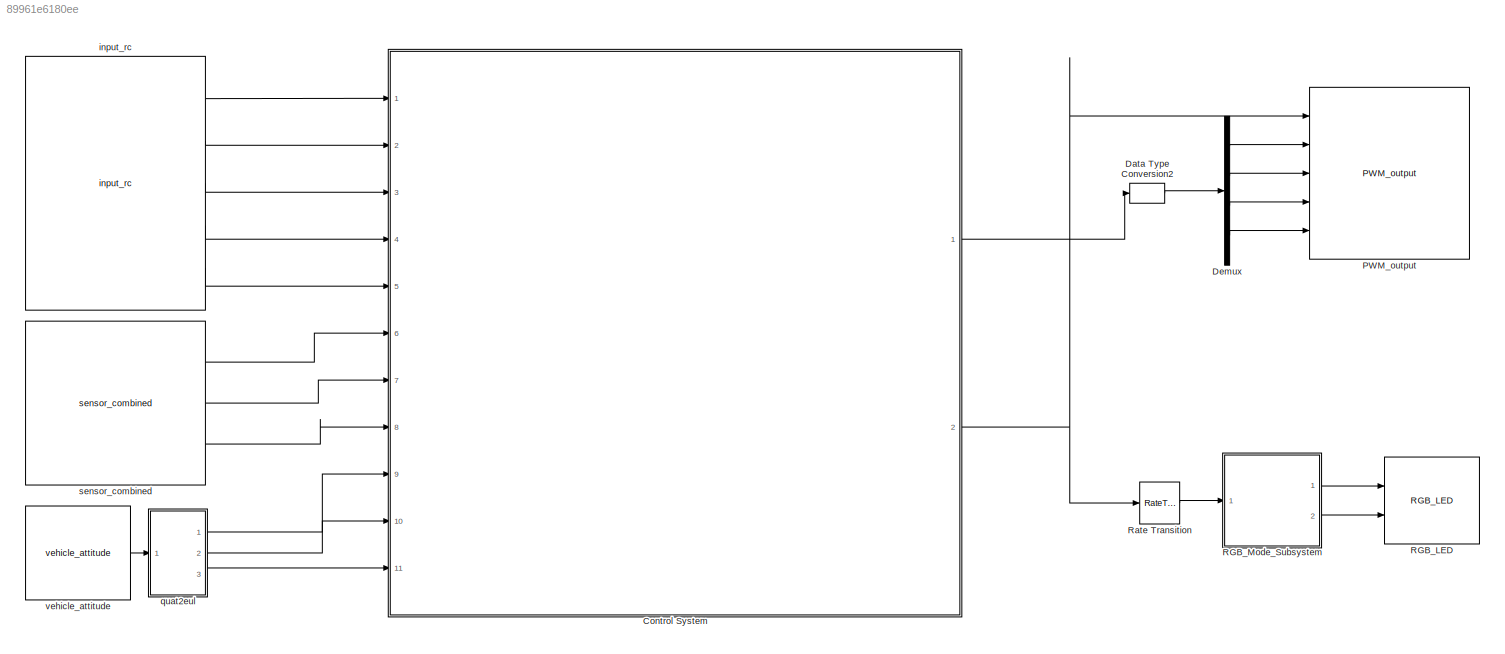
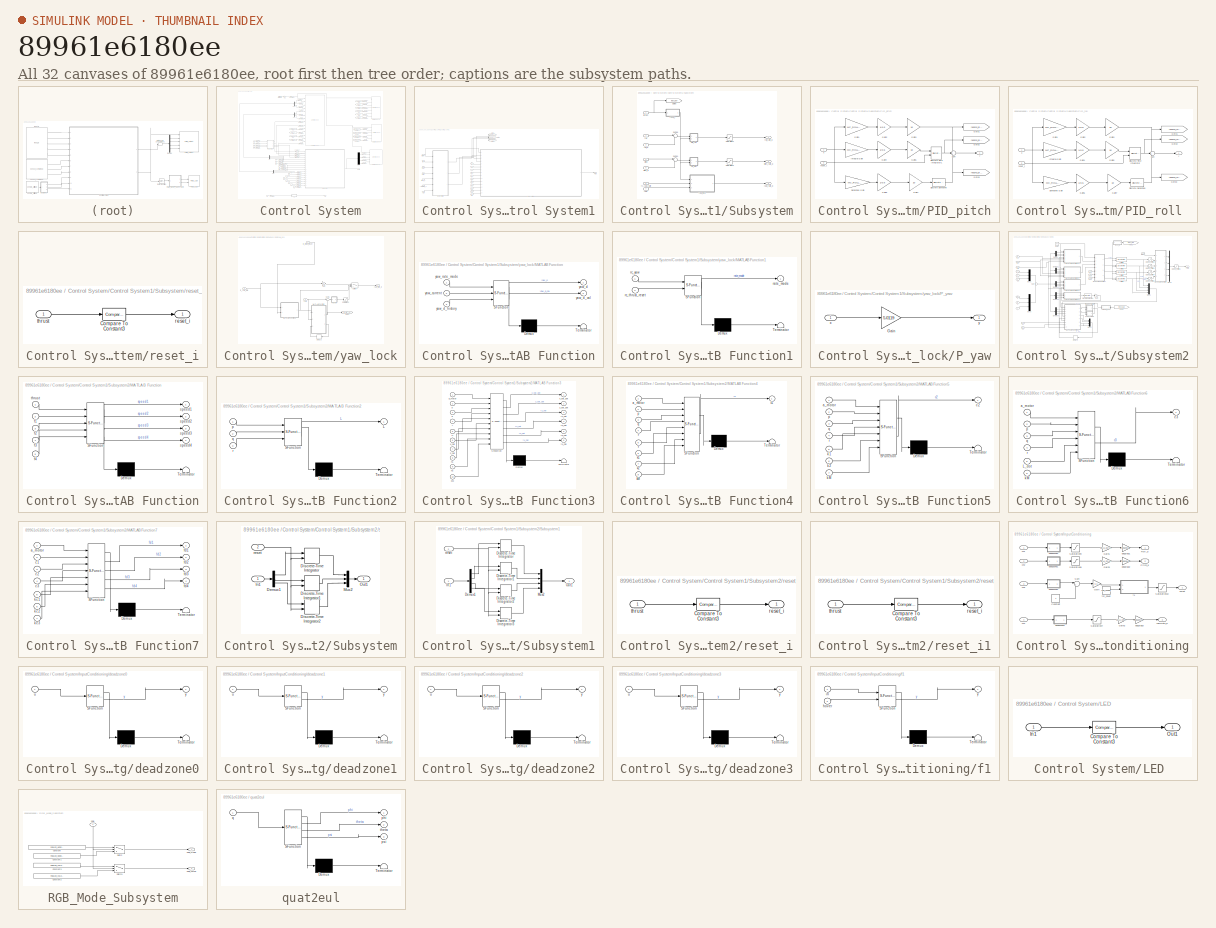
[diagram: thumbnail index - all 32 canvases of the model, root first then tree order]
MODEL slx_89961e6180ee
KIND model
CONFIG AbsTol = auto
CONFIG EnableMultiTasking = off
CONFIG FixedStep = auto
CONFIG MaxStep = auto
CONFIG MinStep = auto
CONFIG RelTol = 1e-3
CONFIG SampleTimeConstraint = Unconstrained
CONFIG SolverName = FixedStepDiscrete
CONFIG StartTime = 0.0
CONFIG StopTime = 10.0
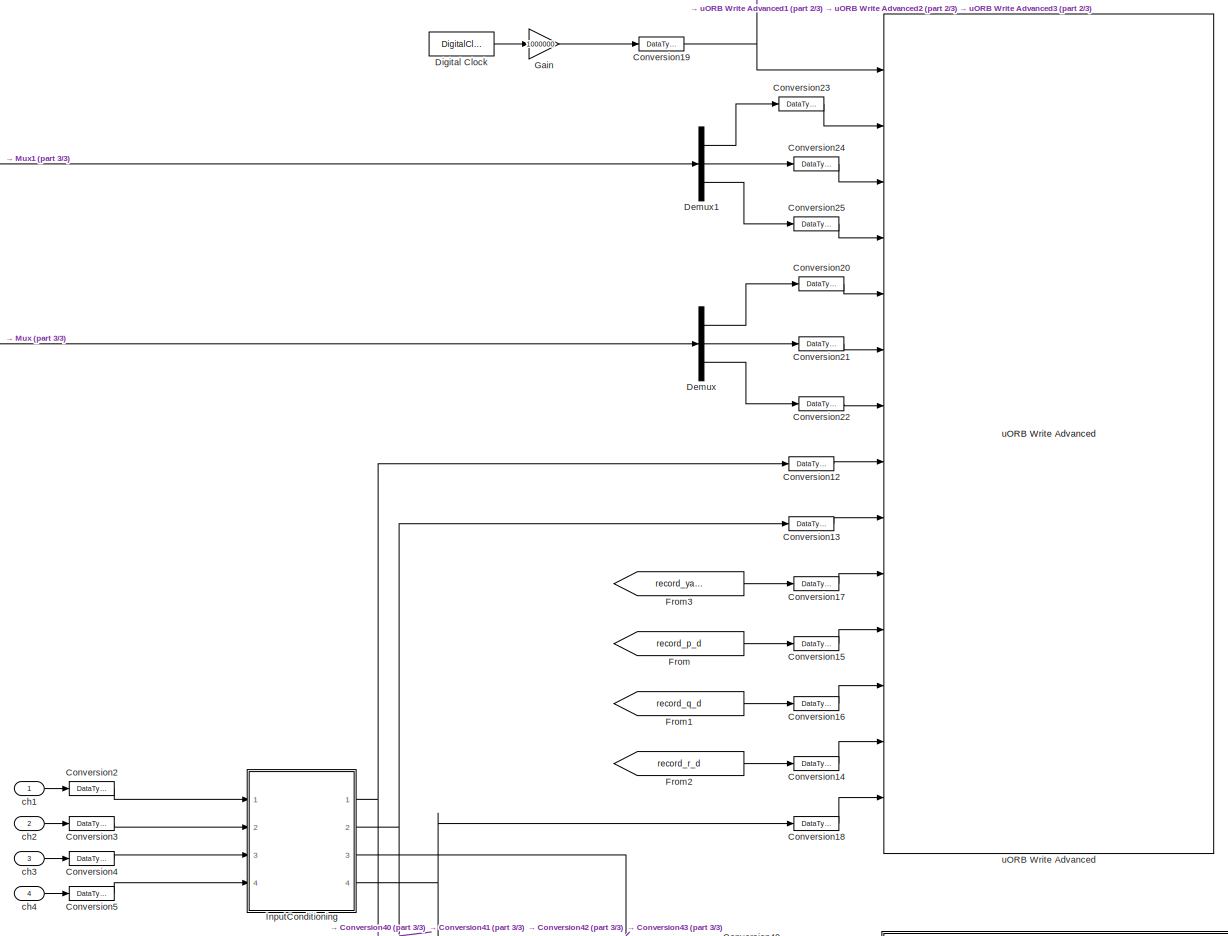
[diagram: Control System - part 1/3, top center region]
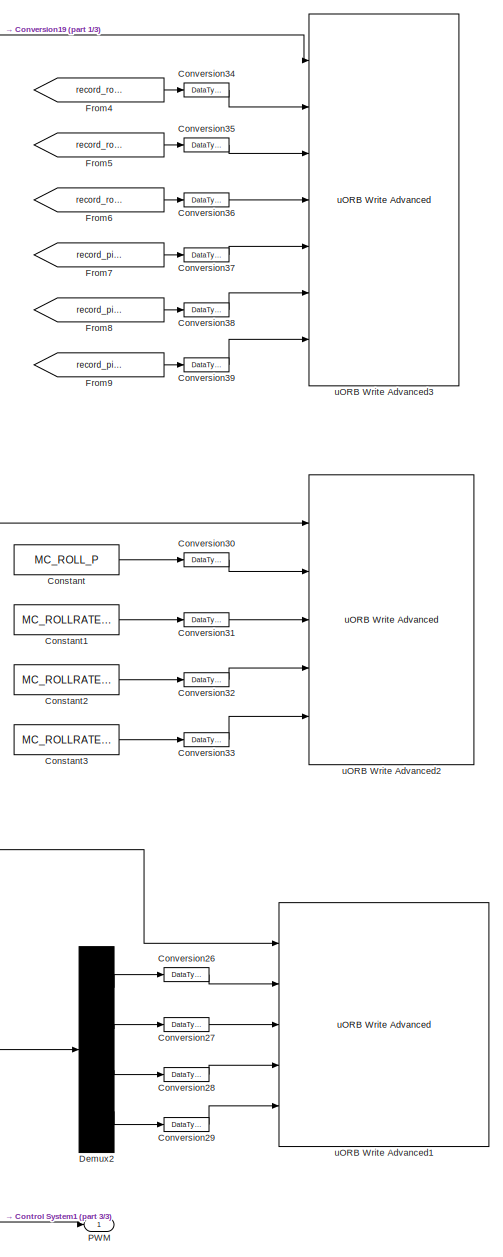
[diagram: Control System - part 2/3, middle right region]
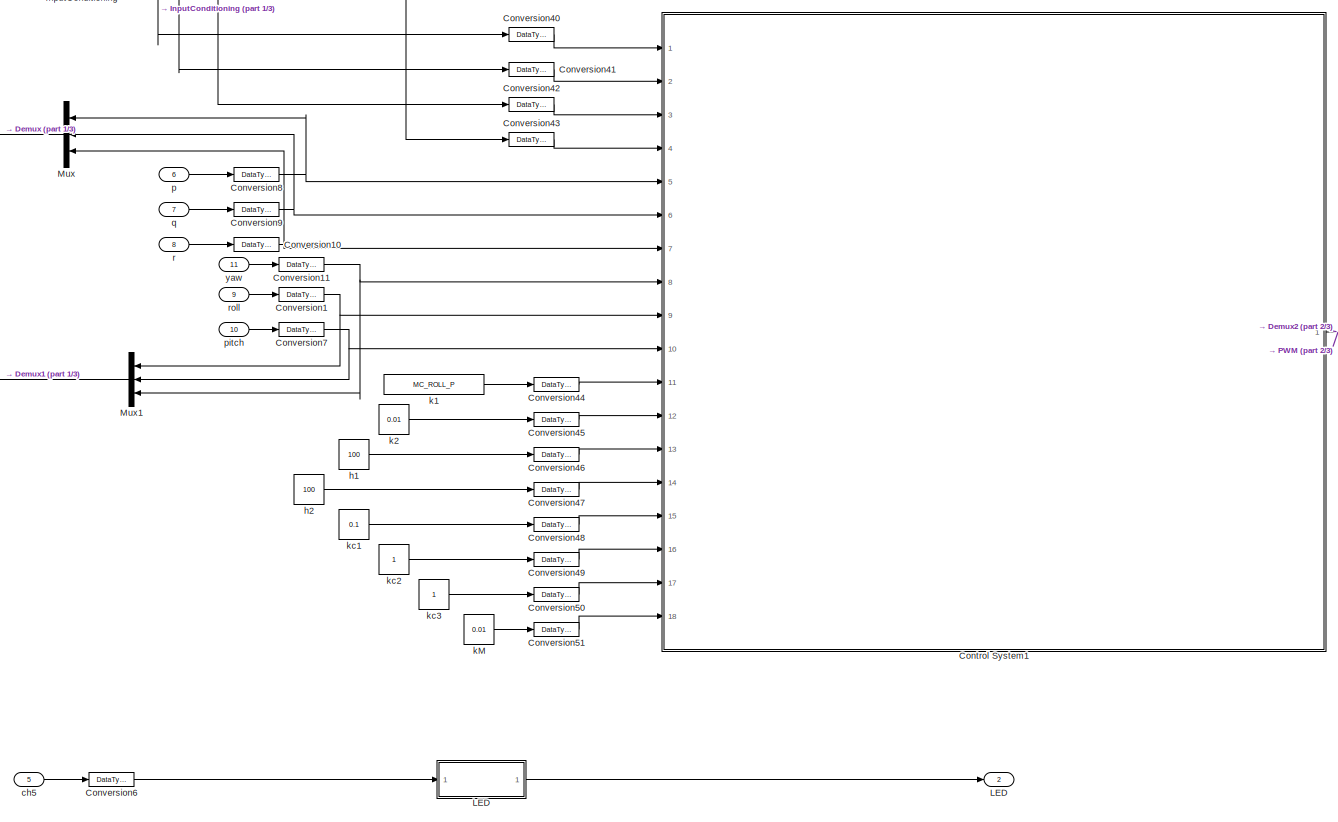
[diagram: Control System - part 3/3, bottom center region]
BLOCK [SubSystem] Control System
  Ports = [11, 2]
  RequestExecContextInheritance = off
BLOCK [Constant] Control System/Constant
  Value = MC_ROLL_P
BLOCK [Constant] Control System/Constant1
  Value = MC_ROLLRATE_P
BLOCK [Constant] Control System/Constant2
  Value = MC_ROLLRATE_I
BLOCK [Constant] Control System/Constant3
  Value = MC_ROLLRATE_D
BLOCK [SubSystem] Control System/Control System1
  Ports = [18, 1]
  RequestExecContextInheritance = off
BLOCK [Goto] Control System/Control System1/Goto1
  GotoTag = record_p_d
  TagVisibility = global
BLOCK [Goto] Control System/Control System1/Goto2
  GotoTag = record_q_d
  TagVisibility = global
BLOCK [Goto] Control System/Control System1/Goto3
  GotoTag = record_r_d
  TagVisibility = global
BLOCK [Outport] Control System/Control System1/PWM
  SamplingMode = Sample based
  SignalType = real
  VectorParamsAs1DForOutWhenUnconnected = off
BLOCK [SubSystem] Control System/Control System1/Subsystem
  Ports = [7, 3]
  RequestExecContextInheritance = off
BLOCK [Goto] Control System/Control System1/Subsystem/Goto5
  GotoTag = thrust_raw
  TagVisibility = global
BLOCK [SubSystem] Control System/Control System1/Subsystem/PID_pitch
  Ports = [2, 1]
  RequestExecContextInheritance = off
BLOCK [Gain] Control System/Control System1/Subsystem/PID_pitch/Derivative Gain
  DisableCoverage = on
  Gain = MC_ROLLRATE_D
  OutMax = 100
  OutMin = -100
  ParamMax = 100
  ParamMin = -100
BLOCK [Reference] Control System/Control System1/Subsystem/PID_pitch/Discrete Derivative  REF=simulink/Discrete/Discrete Derivative
  Ports = [1, 1]
  SourceBlock = simulink/Discrete/Discrete Derivative
  SourceProductBaseCode = SL
  SourceType = Discrete Derivative
BLOCK [DiscreteIntegrator] Control System/Control System1/Subsystem/PID_pitch/Discrete-Time Integrator1
  ExternalReset = level
  ICPrevOutput = DiscIntNeverNeededParam
  ICPrevScaledInput = DiscIntNeverNeededParam
  InitialConditionSetting = Auto
  LimitOutput = on
  LowerSaturationLimit = MAX_ATTI_INTEGRAL_SAT_LOWER
  Ports = [2, 1]
  SampleTime = -1
  UpperSaturationLimit = MAX_ATTI_INTEGRAL_SAT_UPPPER
BLOCK [Gain] Control System/Control System1/Subsystem/PID_pitch/Gain1
  Gain = MC_ROLLRATE_P
BLOCK [Gain] Control System/Control System1/Subsystem/PID_pitch/Gain2
  Gain = 1/0.5
BLOCK [Gain] Control System/Control System1/Subsystem/PID_pitch/Gain3
  Gain = 10
BLOCK [Gain] Control System/Control System1/Subsystem/PID_pitch/Gain4
  Gain = 1/0.5
BLOCK [Gain] Control System/Control System1/Subsystem/PID_pitch/Gain5
  Gain = 10
BLOCK [Gain] Control System/Control System1/Subsystem/PID_pitch/Gain6
  Gain = 1/0.5
BLOCK [Gain] Control System/Control System1/Subsystem/PID_pitch/Gain7
  Gain = 10
BLOCK [Goto] Control System/Control System1/Subsystem/PID_pitch/Goto1
  GotoTag = record_pitch_p_out
  TagVisibility = global
BLOCK [Goto] Control System/Control System1/Subsystem/PID_pitch/Goto2
  GotoTag = record_pitch_i_out
  TagVisibility = global
BLOCK [Goto] Control System/Control System1/Subsystem/PID_pitch/Goto3
  GotoTag = record_pitch_d_out
  TagVisibility = global
BLOCK [Gain] Control System/Control System1/Subsystem/PID_pitch/Integral Gain
  DisableCoverage = on
  Gain = MC_ROLLRATE_I
BLOCK [Sum] Control System/Control System1/Subsystem/PID_pitch/Sum
  Inputs = +++
  Ports = [3, 1]
BLOCK [Inport] Control System/Control System1/Subsystem/PID_pitch/reset_i
  Port = 2
BLOCK [Inport] Control System/Control System1/Subsystem/PID_pitch/x
BLOCK [Outport] Control System/Control System1/Subsystem/PID_pitch/y
  InitialOutput = 0
  VectorParamsAs1DForOutWhenUnconnected = off
BLOCK [SubSystem] Control System/Control System1/Subsystem/PID_roll 
  Ports = [2, 1]
  RequestExecContextInheritance = off
BLOCK [Gain] Control System/Control System1/Subsystem/PID_roll /Derivative Gain
  DisableCoverage = on
  Gain = MC_ROLLRATE_D
  OutMax = 100
  OutMin = -100
  ParamMax = 100
  ParamMin = -100
BLOCK [Reference] Control System/Control System1/Subsystem/PID_roll /Discrete Derivative  REF=simulink/Discrete/Discrete Derivative
  Ports = [1, 1]
  SourceBlock = simulink/Discrete/Discrete Derivative
  SourceProductBaseCode = SL
  SourceType = Discrete Derivative
BLOCK [DiscreteIntegrator] Control System/Control System1/Subsystem/PID_roll /Discrete-Time Integrator
  ExternalReset = level
  ICPrevOutput = DiscIntNeverNeededParam
  ICPrevScaledInput = DiscIntNeverNeededParam
  InitialConditionSetting = Auto
  LimitOutput = on
  LowerSaturationLimit = MAX_ATTI_INTEGRAL_SAT_LOWER
  Ports = [2, 1]
  SampleTime = -1
  UpperSaturationLimit = MAX_ATTI_INTEGRAL_SAT_UPPPER
BLOCK [Gain] Control System/Control System1/Subsystem/PID_roll /Gain1
  Gain = MC_ROLLRATE_P
BLOCK [Gain] Control System/Control System1/Subsystem/PID_roll /Gain2
  Gain = 1/0.5
BLOCK [Gain] Control System/Control System1/Subsystem/PID_roll /Gain3
  Gain = 10
BLOCK [Gain] Control System/Control System1/Subsystem/PID_roll /Gain4
  Gain = 1/0.5
BLOCK [Gain] Control System/Control System1/Subsystem/PID_roll /Gain5
  Gain = 10
BLOCK [Gain] Control System/Control System1/Subsystem/PID_roll /Gain6
  Gain = 1/0.5
BLOCK [Gain] Control System/Control System1/Subsystem/PID_roll /Gain7
  Gain = 10
BLOCK [Goto] Control System/Control System1/Subsystem/PID_roll /Goto1
  GotoTag = record_roll_p_out
  TagVisibility = global
BLOCK [Goto] Control System/Control System1/Subsystem/PID_roll /Goto2
  GotoTag = record_roll_i_out
  TagVisibility = global
BLOCK [Goto] Control System/Control System1/Subsystem/PID_roll /Goto3
  GotoTag = record_roll_d_out
  TagVisibility = global
BLOCK [Gain] Control System/Control System1/Subsystem/PID_roll /Integral Gain
  DisableCoverage = on
  Gain = MC_ROLLRATE_I
BLOCK [Sum] Control System/Control System1/Subsystem/PID_roll /Sum
  Inputs = +++
  Ports = [3, 1]
BLOCK [Inport] Control System/Control System1/Subsystem/PID_roll /reset_i
  Port = 2
BLOCK [Inport] Control System/Control System1/Subsystem/PID_roll /x
BLOCK [Outport] Control System/Control System1/Subsystem/PID_roll /y
  InitialOutput = 0
  VectorParamsAs1DForOutWhenUnconnected = off
BLOCK [Saturate] Control System/Control System1/Subsystem/Saturation3
  LowerLimit = -MAX_ATTI_ROLLPITCH_CONTROL_COMMAND
  UpperLimit = MAX_ATTI_ROLLPITCH_CONTROL_COMMAND
BLOCK [Saturate] Control System/Control System1/Subsystem/Saturation4
  LowerLimit = -MAX_ATTI_ROLLPITCH_CONTROL_COMMAND
  UpperLimit = MAX_ATTI_ROLLPITCH_CONTROL_COMMAND
BLOCK [Sum] Control System/Control System1/Subsystem/Sum18
  Inputs = |-+
  Ports = [2, 1]
BLOCK [Sum] Control System/Control System1/Subsystem/Sum19
  Inputs = |-+
  Ports = [2, 1]
BLOCK [Inport] Control System/Control System1/Subsystem/pitch
  Port = 4
BLOCK [Inport] Control System/Control System1/Subsystem/pitch_d
  Port = 5
BLOCK [Outport] Control System/Control System1/Subsystem/pitch_rate_d
  Port = 2
BLOCK [Inport] Control System/Control System1/Subsystem/rc_yaw_rate
  Port = 6
BLOCK [SubSystem] Control System/Control System1/Subsystem/reset_i
  Ports = [1, 1]
  RequestExecContextInheritance = off
BLOCK [Reference] Control System/Control System1/Subsystem/reset_i/Compare To Constant3  REF=simulink/Logic and Bit
Operations/Compare
To Constant
  Ports = [1, 1]
  SourceBlock = simulink/Logic and Bit\nOperations/Compare\nTo Constant
  SourceProductBaseCode = SL
  SourceType = Compare To Constant
BLOCK [Outport] Control System/Control System1/Subsystem/reset_i/reset_i
  VectorParamsAs1DForOutWhenUnconnected = off
BLOCK [Inport] Control System/Control System1/Subsystem/reset_i/thrust
BLOCK [Inport] Control System/Control System1/Subsystem/roll
  Port = 2
BLOCK [Inport] Control System/Control System1/Subsystem/roll_d
  Port = 3
BLOCK [Outport] Control System/Control System1/Subsystem/roll_rate_d
BLOCK [Inport] Control System/Control System1/Subsystem/thrust
BLOCK [Inport] Control System/Control System1/Subsystem/yaw
  Port = 7
BLOCK [SubSystem] Control System/Control System1/Subsystem/yaw_lock
  Ports = [3, 1]
  RequestExecContextInheritance = off
BLOCK [Delay] Control System/Control System1/Subsystem/yaw_lock/Delay2
  DelayLength = 1
  InitialCondition = 0
  InputPortMap = u0
  Ports = [1, 1]
  SampleTime = 0.001
BLOCK [Gain] Control System/Control System1/Subsystem/yaw_lock/Gain
BLOCK [Goto] Control System/Control System1/Subsystem/yaw_lock/Goto4
  GotoTag = record_yaw_d
  TagVisibility = global
BLOCK [SubSystem] Control System/Control System1/Subsystem/yaw_lock/MATLAB Function
  ErrorFcn = Stateflow.Translate.translate
  PermitHierarchicalResolution = ExplicitOnly
  Ports = [3, 2]
  RequestExecContextInheritance = off
  SFBlockType = MATLAB Function
  TreatAsAtomicUnit = on
BLOCK [Demux] Control System/Control System1/Subsystem/yaw_lock/MATLAB Function/ Demux 
  Outputs = 1
  Ports = [1, 1]
BLOCK [S-Function] Control System/Control System1/Subsystem/yaw_lock/MATLAB Function/ SFunction 
  EnableBusSupport = on
  FunctionName = sf_sfun
  PortCounts = [3 3]
  Ports = [3, 3]
  SFcnIsStateOwnerBlock = off
  SFunctionDeploymentMode = off
  Tag = Stateflow S-Function 4
BLOCK [Terminator] Control System/Control System1/Subsystem/yaw_lock/MATLAB Function/ Terminator 
BLOCK [Inport] Control System/Control System1/Subsystem/yaw_lock/MATLAB Function/yaw_current
  Port = 2
BLOCK [Outport] Control System/Control System1/Subsystem/yaw_lock/MATLAB Function/yaw_d
BLOCK [Outport] Control System/Control System1/Subsystem/yaw_lock/MATLAB Function/yaw_d_cal
  Port = 2
BLOCK [Inport] Control System/Control System1/Subsystem/yaw_lock/MATLAB Function/yaw_d_history
  Port = 3
BLOCK [Inport] Control System/Control System1/Subsystem/yaw_lock/MATLAB Function/yaw_rate_mode
BLOCK [SubSystem] Control System/Control System1/Subsystem/yaw_lock/MATLAB Function1
  ErrorFcn = Stateflow.Translate.translate
  PermitHierarchicalResolution = ExplicitOnly
  Ports = [2, 1]
  RequestExecContextInheritance = off
  SFBlockType = MATLAB Function
  TreatAsAtomicUnit = on
BLOCK [Demux] Control System/Control System1/Subsystem/yaw_lock/MATLAB Function1/ Demux 
  Outputs = 1
  Ports = [1, 1]
BLOCK [S-Function] Control System/Control System1/Subsystem/yaw_lock/MATLAB Function1/ SFunction 
  EnableBusSupport = on
  FunctionName = sf_sfun
  PortCounts = [2 2]
  Ports = [2, 2]
  SFcnIsStateOwnerBlock = off
  SFunctionDeploymentMode = off
  Tag = Stateflow S-Function 6
BLOCK [Terminator] Control System/Control System1/Subsystem/yaw_lock/MATLAB Function1/ Terminator 
BLOCK [Outport] Control System/Control System1/Subsystem/yaw_lock/MATLAB Function1/rate_mode
BLOCK [Inport] Control System/Control System1/Subsystem/yaw_lock/MATLAB Function1/rc_thrust_reset
  Port = 2
BLOCK [Inport] Control System/Control System1/Subsystem/yaw_lock/MATLAB Function1/rc_yaw
BLOCK [SubSystem] Control System/Control System1/Subsystem/yaw_lock/P_yaw
  Ports = [1, 1]
  RequestExecContextInheritance = off
BLOCK [Gain] Control System/Control System1/Subsystem/yaw_lock/P_yaw/Gain
  Gain = 5.0119
BLOCK [Inport] Control System/Control System1/Subsystem/yaw_lock/P_yaw/x
BLOCK [Outport] Control System/Control System1/Subsystem/yaw_lock/P_yaw/y
  InitialOutput = 0
  VectorParamsAs1DForOutWhenUnconnected = off
BLOCK [Saturate] Control System/Control System1/Subsystem/yaw_lock/Saturation1
  LowerLimit = -MAX_ATTI_YAW_CONTROL_COMMAND
  UpperLimit = MAX_ATTI_YAW_CONTROL_COMMAND
BLOCK [Sum] Control System/Control System1/Subsystem/yaw_lock/Sum1
  Inputs = |-+
  Ports = [2, 1]
BLOCK [Switch] Control System/Control System1/Subsystem/yaw_lock/Switch
  Criteria = u2 > Threshold
  InputSameDT = off
  SaturateOnIntegerOverflow = off
  Threshold = 0.5
BLOCK [Inport] Control System/Control System1/Subsystem/yaw_lock/rc_thrust_reset
BLOCK [Inport] Control System/Control System1/Subsystem/yaw_lock/rc_yaw_rate
  Port = 2
BLOCK [Inport] Control System/Control System1/Subsystem/yaw_lock/yaw
  Port = 3
  PortDimensions = 1
  SamplingMode = Sample based
  SignalType = real
BLOCK [Outport] Control System/Control System1/Subsystem/yaw_lock/yaw_rate_d
BLOCK [Outport] Control System/Control System1/Subsystem/yaw_rate_d
  Port = 3
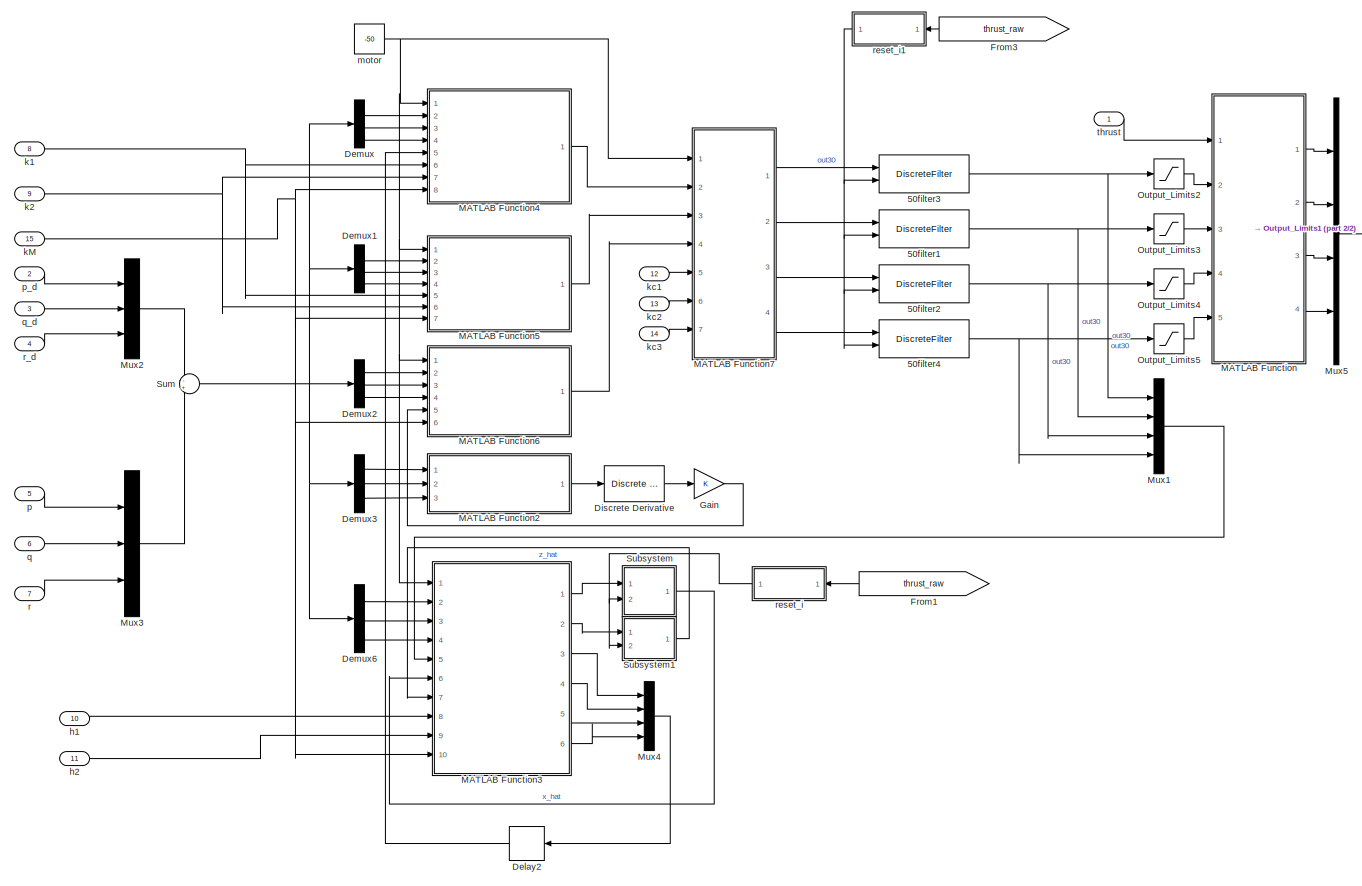
[diagram: Control System/Control System1/Subsystem2 - part 1/2, most of the canvas]
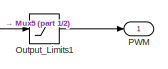
[diagram: Control System/Control System1/Subsystem2 - part 2/2, top right region]
BLOCK [SubSystem] Control System/Control System1/Subsystem2
  Ports = [15, 1]
  RequestExecContextInheritance = off
BLOCK [DiscreteFilter] Control System/Control System1/Subsystem2/50filter1
  Denominator = [1.0000   -1.4590    0.9104   -0.1978]
  ExternalReset = Level
  InputPortMap = u0,r7
  Numerator = [0.0317    0.0951    0.0951    0.0317]
  Ports = [2, 1]
BLOCK [DiscreteFilter] Control System/Control System1/Subsystem2/50filter2
  Denominator = [1.0000   -1.4590    0.9104   -0.1978]
  ExternalReset = Level
  InputPortMap = u0,r7
  Numerator = [0.0317    0.0951    0.0951    0.0317]
  Ports = [2, 1]
BLOCK [DiscreteFilter] Control System/Control System1/Subsystem2/50filter3
  Denominator = [1.0000   -1.4590    0.9104   -0.1978]
  ExternalReset = Level
  InputPortMap = u0,r7
  Numerator = [0.0317    0.0951    0.0951    0.0317]
  Ports = [2, 1]
BLOCK [DiscreteFilter] Control System/Control System1/Subsystem2/50filter4
  Denominator = [1.0000   -1.4590    0.9104   -0.1978]
  ExternalReset = Level
  InputPortMap = u0,r7
  Numerator = [0.0317    0.0951    0.0951    0.0317]
  Ports = [2, 1]
BLOCK [Delay] Control System/Control System1/Subsystem2/Delay2
  DelayLength = 1
  InitialCondition = 0
  InputPortMap = u0
  Ports = [1, 1]
  SampleTime = 0.001
BLOCK [Demux] Control System/Control System1/Subsystem2/Demux
  Outputs = 3
  Ports = [1, 3]
BLOCK [Demux] Control System/Control System1/Subsystem2/Demux1
  Outputs = 3
  Ports = [1, 3]
BLOCK [Demux] Control System/Control System1/Subsystem2/Demux2
  Outputs = 3
  Ports = [1, 3]
BLOCK [Demux] Control System/Control System1/Subsystem2/Demux3
  Outputs = 3
  Ports = [1, 3]
BLOCK [Demux] Control System/Control System1/Subsystem2/Demux6
  Outputs = 3
  Ports = [1, 3]
BLOCK [Reference] Control System/Control System1/Subsystem2/Discrete Derivative  REF=simulink/Discrete/Discrete Derivative
  Ports = [1, 1]
  SourceBlock = simulink/Discrete/Discrete Derivative
  SourceProductBaseCode = SL
  SourceType = Discrete Derivative
BLOCK [From] Control System/Control System1/Subsystem2/From1
  GotoTag = thrust_raw
  TagVisibility = global
BLOCK [From] Control System/Control System1/Subsystem2/From3
  GotoTag = thrust_raw
  TagVisibility = global
BLOCK [Gain] Control System/Control System1/Subsystem2/Gain
BLOCK [SubSystem] Control System/Control System1/Subsystem2/MATLAB Function
  ErrorFcn = Stateflow.Translate.translate
  PermitHierarchicalResolution = ExplicitOnly
  Ports = [5, 4]
  RequestExecContextInheritance = off
  SFBlockType = MATLAB Function
  TreatAsAtomicUnit = on
BLOCK [Demux] Control System/Control System1/Subsystem2/MATLAB Function/ Demux 
  Outputs = 1
  Ports = [1, 1]
BLOCK [S-Function] Control System/Control System1/Subsystem2/MATLAB Function/ SFunction 
  EnableBusSupport = on
  FunctionName = sf_sfun
  PortCounts = [5 5]
  Ports = [5, 5]
  SFcnIsStateOwnerBlock = off
  SFunctionDeploymentMode = off
  Tag = Stateflow S-Function 7
BLOCK [Terminator] Control System/Control System1/Subsystem2/MATLAB Function/ Terminator 
BLOCK [Inport] Control System/Control System1/Subsystem2/MATLAB Function/f1
  Port = 2
BLOCK [Inport] Control System/Control System1/Subsystem2/MATLAB Function/f2
  Port = 3
BLOCK [Inport] Control System/Control System1/Subsystem2/MATLAB Function/f3
  Port = 4
BLOCK [Inport] Control System/Control System1/Subsystem2/MATLAB Function/f4
  Port = 5
BLOCK [Outport] Control System/Control System1/Subsystem2/MATLAB Function/speed1
BLOCK [Outport] Control System/Control System1/Subsystem2/MATLAB Function/speed2
  Port = 2
BLOCK [Outport] Control System/Control System1/Subsystem2/MATLAB Function/speed3
  Port = 3
BLOCK [Outport] Control System/Control System1/Subsystem2/MATLAB Function/speed4
  Port = 4
BLOCK [Inport] Control System/Control System1/Subsystem2/MATLAB Function/thrust
BLOCK [SubSystem] Control System/Control System1/Subsystem2/MATLAB Function2
  ErrorFcn = Stateflow.Translate.translate
  PermitHierarchicalResolution = ExplicitOnly
  Ports = [3, 1]
  RequestExecContextInheritance = off
  SFBlockType = MATLAB Function
  TreatAsAtomicUnit = on
BLOCK [Demux] Control System/Control System1/Subsystem2/MATLAB Function2/ Demux 
  Outputs = 1
  Ports = [1, 1]
BLOCK [S-Function] Control System/Control System1/Subsystem2/MATLAB Function2/ SFunction 
  EnableBusSupport = on
  FunctionName = sf_sfun
  PortCounts = [3 2]
  Ports = [3, 2]
  SFcnIsStateOwnerBlock = off
  SFunctionDeploymentMode = off
  Tag = Stateflow S-Function 12
BLOCK [Terminator] Control System/Control System1/Subsystem2/MATLAB Function2/ Terminator 
BLOCK [Outport] Control System/Control System1/Subsystem2/MATLAB Function2/L
BLOCK [Inport] Control System/Control System1/Subsystem2/MATLAB Function2/p
BLOCK [Inport] Control System/Control System1/Subsystem2/MATLAB Function2/q
  Port = 2
BLOCK [Inport] Control System/Control System1/Subsystem2/MATLAB Function2/r
  Port = 3
BLOCK [SubSystem] Control System/Control System1/Subsystem2/MATLAB Function3
  ErrorFcn = Stateflow.Translate.translate
  PermitHierarchicalResolution = ExplicitOnly
  Ports = [10, 6]
  RequestExecContextInheritance = off
  SFBlockType = MATLAB Function
  TreatAsAtomicUnit = on
BLOCK [Demux] Control System/Control System1/Subsystem2/MATLAB Function3/ Demux 
  Outputs = 1
  Ports = [1, 1]
BLOCK [S-Function] Control System/Control System1/Subsystem2/MATLAB Function3/ SFunction 
  EnableBusSupport = on
  FunctionName = sf_sfun
  PortCounts = [10 7]
  Ports = [10, 7]
  SFcnIsStateOwnerBlock = off
  SFunctionDeploymentMode = off
  Tag = Stateflow S-Function 15
BLOCK [Terminator] Control System/Control System1/Subsystem2/MATLAB Function3/ Terminator 
BLOCK [Inport] Control System/Control System1/Subsystem2/MATLAB Function3/U
  Port = 5
BLOCK [Inport] Control System/Control System1/Subsystem2/MATLAB Function3/a_motor
BLOCK [Outport] Control System/Control System1/Subsystem2/MATLAB Function3/f1_hat
  Port = 3
BLOCK [Outport] Control System/Control System1/Subsystem2/MATLAB Function3/f2_hat
  Port = 4
BLOCK [Outport] Control System/Control System1/Subsystem2/MATLAB Function3/f3_hat
  Port = 5
BLOCK [Outport] Control System/Control System1/Subsystem2/MATLAB Function3/f4_hat
  Port = 6
BLOCK [Inport] Control System/Control System1/Subsystem2/MATLAB Function3/h1
  Port = 8
BLOCK [Inport] Control System/Control System1/Subsystem2/MATLAB Function3/h2
  Port = 9
BLOCK [Inport] Control System/Control System1/Subsystem2/MATLAB Function3/kM
  Port = 10
BLOCK [Inport] Control System/Control System1/Subsystem2/MATLAB Function3/p
  Port = 2
BLOCK [Inport] Control System/Control System1/Subsystem2/MATLAB Function3/q
  Port = 3
BLOCK [Inport] Control System/Control System1/Subsystem2/MATLAB Function3/r
  Port = 4
BLOCK [Inport] Control System/Control System1/Subsystem2/MATLAB Function3/x_hat
  Port = 6
BLOCK [Outport] Control System/Control System1/Subsystem2/MATLAB Function3/x_hat_dot
BLOCK [Inport] Control System/Control System1/Subsystem2/MATLAB Function3/z_hat
  Port = 7
BLOCK [Outport] Control System/Control System1/Subsystem2/MATLAB Function3/z_hat_dot
  Port = 2
BLOCK [SubSystem] Control System/Control System1/Subsystem2/MATLAB Function4
  ErrorFcn = Stateflow.Translate.translate
  PermitHierarchicalResolution = ExplicitOnly
  Ports = [8, 1]
  RequestExecContextInheritance = off
  SFBlockType = MATLAB Function
  TreatAsAtomicUnit = on
BLOCK [Demux] Control System/Control System1/Subsystem2/MATLAB Function4/ Demux 
  Outputs = 1
  Ports = [1, 1]
BLOCK [S-Function] Control System/Control System1/Subsystem2/MATLAB Function4/ SFunction 
  EnableBusSupport = on
  FunctionName = sf_sfun
  PortCounts = [8 2]
  Ports = [8, 2]
  SFcnIsStateOwnerBlock = off
  SFunctionDeploymentMode = off
  Tag = Stateflow S-Function 16
BLOCK [Terminator] Control System/Control System1/Subsystem2/MATLAB Function4/ Terminator 
BLOCK [Inport] Control System/Control System1/Subsystem2/MATLAB Function4/a_motor
BLOCK [Outport] Control System/Control System1/Subsystem2/MATLAB Function4/c1
BLOCK [Inport] Control System/Control System1/Subsystem2/MATLAB Function4/f
  Port = 5
BLOCK [Inport] Control System/Control System1/Subsystem2/MATLAB Function4/k1
  Port = 6
BLOCK [Inport] Control System/Control System1/Subsystem2/MATLAB Function4/k2
  Port = 7
BLOCK [Inport] Control System/Control System1/Subsystem2/MATLAB Function4/kM
  Port = 8
BLOCK [Inport] Control System/Control System1/Subsystem2/MATLAB Function4/p
  Port = 2
BLOCK [Inport] Control System/Control System1/Subsystem2/MATLAB Function4/q
  Port = 3
BLOCK [Inport] Control System/Control System1/Subsystem2/MATLAB Function4/r
  Port = 4
BLOCK [SubSystem] Control System/Control System1/Subsystem2/MATLAB Function5
  ErrorFcn = Stateflow.Translate.translate
  PermitHierarchicalResolution = ExplicitOnly
  Ports = [7, 1]
  RequestExecContextInheritance = off
  SFBlockType = MATLAB Function
  TreatAsAtomicUnit = on
BLOCK [Demux] Control System/Control System1/Subsystem2/MATLAB Function5/ Demux 
  Outputs = 1
  Ports = [1, 1]
BLOCK [S-Function] Control System/Control System1/Subsystem2/MATLAB Function5/ SFunction 
  EnableBusSupport = on
  FunctionName = sf_sfun
  PortCounts = [7 2]
  Ports = [7, 2]
  SFcnIsStateOwnerBlock = off
  SFunctionDeploymentMode = off
  Tag = Stateflow S-Function 17
BLOCK [Terminator] Control System/Control System1/Subsystem2/MATLAB Function5/ Terminator 
BLOCK [Inport] Control System/Control System1/Subsystem2/MATLAB Function5/a_motor
BLOCK [Outport] Control System/Control System1/Subsystem2/MATLAB Function5/c2
BLOCK [Inport] Control System/Control System1/Subsystem2/MATLAB Function5/k1
  Port = 5
BLOCK [Inport] Control System/Control System1/Subsystem2/MATLAB Function5/k2
  Port = 6
BLOCK [Inport] Control System/Control System1/Subsystem2/MATLAB Function5/kM
  Port = 7
BLOCK [Inport] Control System/Control System1/Subsystem2/MATLAB Function5/p
  Port = 2
BLOCK [Inport] Control System/Control System1/Subsystem2/MATLAB Function5/q
  Port = 3
BLOCK [Inport] Control System/Control System1/Subsystem2/MATLAB Function5/r
  Port = 4
BLOCK [SubSystem] Control System/Control System1/Subsystem2/MATLAB Function6
  ErrorFcn = Stateflow.Translate.translate
  PermitHierarchicalResolution = ExplicitOnly
  Ports = [6, 1]
  RequestExecContextInheritance = off
  SFBlockType = MATLAB Function
  TreatAsAtomicUnit = on
BLOCK [Demux] Control System/Control System1/Subsystem2/MATLAB Function6/ Demux 
  Outputs = 1
  Ports = [1, 1]
BLOCK [S-Function] Control System/Control System1/Subsystem2/MATLAB Function6/ SFunction 
  EnableBusSupport = on
  FunctionName = sf_sfun
  PortCounts = [6 2]
  Ports = [6, 2]
  SFcnIsStateOwnerBlock = off
  SFunctionDeploymentMode = off
  Tag = Stateflow S-Function 18
BLOCK [Terminator] Control System/Control System1/Subsystem2/MATLAB Function6/ Terminator 
BLOCK [Inport] Control System/Control System1/Subsystem2/MATLAB Function6/L_dot
  Port = 5
BLOCK [Inport] Control System/Control System1/Subsystem2/MATLAB Function6/a_motor
BLOCK [Outport] Control System/Control System1/Subsystem2/MATLAB Function6/c3
BLOCK [Inport] Control System/Control System1/Subsystem2/MATLAB Function6/kM
  Port = 6
BLOCK [Inport] Control System/Control System1/Subsystem2/MATLAB Function6/p
  Port = 2
BLOCK [Inport] Control System/Control System1/Subsystem2/MATLAB Function6/q
  Port = 3
BLOCK [Inport] Control System/Control System1/Subsystem2/MATLAB Function6/r
  Port = 4
BLOCK [SubSystem] Control System/Control System1/Subsystem2/MATLAB Function7
  ErrorFcn = Stateflow.Translate.translate
  PermitHierarchicalResolution = ExplicitOnly
  Ports = [7, 4]
  RequestExecContextInheritance = off
  SFBlockType = MATLAB Function
  TreatAsAtomicUnit = on
BLOCK [Demux] Control System/Control System1/Subsystem2/MATLAB Function7/ Demux 
  Outputs = 1
  Ports = [1, 1]
BLOCK [S-Function] Control System/Control System1/Subsystem2/MATLAB Function7/ SFunction 
  EnableBusSupport = on
  FunctionName = sf_sfun
  PortCounts = [7 5]
  Ports = [7, 5]
  SFcnIsStateOwnerBlock = off
  SFunctionDeploymentMode = off
  Tag = Stateflow S-Function 19
BLOCK [Terminator] Control System/Control System1/Subsystem2/MATLAB Function7/ Terminator 
BLOCK [Inport] Control System/Control System1/Subsystem2/MATLAB Function7/a_motor
BLOCK [Inport] Control System/Control System1/Subsystem2/MATLAB Function7/c1
  Port = 2
BLOCK [Inport] Control System/Control System1/Subsystem2/MATLAB Function7/c2
  Port = 3
BLOCK [Inport] Control System/Control System1/Subsystem2/MATLAB Function7/c3
  Port = 4
BLOCK [Outport] Control System/Control System1/Subsystem2/MATLAB Function7/fd1
BLOCK [Outport] Control System/Control System1/Subsystem2/MATLAB Function7/fd2
  Port = 2
BLOCK [Outport] Control System/Control System1/Subsystem2/MATLAB Function7/fd3
  Port = 3
BLOCK [Outport] Control System/Control System1/Subsystem2/MATLAB Function7/fd4
  Port = 4
BLOCK [Inport] Control System/Control System1/Subsystem2/MATLAB Function7/kc1
  Port = 5
BLOCK [Inport] Control System/Control System1/Subsystem2/MATLAB Function7/kc2
  Port = 6
BLOCK [Inport] Control System/Control System1/Subsystem2/MATLAB Function7/kc3
  Port = 7
BLOCK [Mux] Control System/Control System1/Subsystem2/Mux1
  DisplayOption = bar
  Ports = [4, 1]
BLOCK [Mux] Control System/Control System1/Subsystem2/Mux2
  DisplayOption = bar
  Inputs = 3
  Ports = [3, 1]
BLOCK [Mux] Control System/Control System1/Subsystem2/Mux3
  DisplayOption = bar
  Inputs = 3
  Ports = [3, 1]
BLOCK [Mux] Control System/Control System1/Subsystem2/Mux4
  DisplayOption = bar
  Ports = [4, 1]
BLOCK [Mux] Control System/Control System1/Subsystem2/Mux5
  DisplayOption = bar
  Ports = [4, 1]
BLOCK [Saturate] Control System/Control System1/Subsystem2/Output_Limits1
  LinearizeAsGain = off
  LowerLimit = 1230
  UpperLimit = 1950
BLOCK [Saturate] Control System/Control System1/Subsystem2/Output_Limits2
  LinearizeAsGain = off
  LowerLimit = -1
  UpperLimit = 1
BLOCK [Saturate] Control System/Control System1/Subsystem2/Output_Limits3
  LinearizeAsGain = off
  LowerLimit = -1
  UpperLimit = 1
BLOCK [Saturate] Control System/Control System1/Subsystem2/Output_Limits4
  LinearizeAsGain = off
  LowerLimit = -1
  UpperLimit = 1
BLOCK [Saturate] Control System/Control System1/Subsystem2/Output_Limits5
  LinearizeAsGain = off
  LowerLimit = -1
  UpperLimit = 1
BLOCK [Outport] Control System/Control System1/Subsystem2/PWM
BLOCK [SubSystem] Control System/Control System1/Subsystem2/Subsystem
  Ports = [2, 1]
  RequestExecContextInheritance = off
BLOCK [Demux] Control System/Control System1/Subsystem2/Subsystem/Demux1
  Outputs = 3
  Ports = [1, 3]
BLOCK [DiscreteIntegrator] Control System/Control System1/Subsystem2/Subsystem/Discrete-Time Integrator
  ExternalReset = level
  ICPrevOutput = DiscIntNeverNeededParam
  ICPrevScaledInput = DiscIntNeverNeededParam
  InitialConditionSetting = Auto
  OutDataTypeStr = double
  Ports = [2, 1]
  SampleTime = -1
BLOCK [DiscreteIntegrator] Control System/Control System1/Subsystem2/Subsystem/Discrete-Time Integrator1
  ExternalReset = level
  ICPrevOutput = DiscIntNeverNeededParam
  ICPrevScaledInput = DiscIntNeverNeededParam
  InitialConditionSetting = Auto
  OutDataTypeStr = double
  Ports = [2, 1]
  SampleTime = -1
BLOCK [DiscreteIntegrator] Control System/Control System1/Subsystem2/Subsystem/Discrete-Time Integrator2
  ExternalReset = level
  ICPrevOutput = DiscIntNeverNeededParam
  ICPrevScaledInput = DiscIntNeverNeededParam
  InitialConditionSetting = Auto
  OutDataTypeStr = double
  Ports = [2, 1]
  SampleTime = -1
BLOCK [Inport] Control System/Control System1/Subsystem2/Subsystem/In1
BLOCK [Mux] Control System/Control System1/Subsystem2/Subsystem/Mux2
  DisplayOption = bar
  Inputs = 3
  Ports = [3, 1]
BLOCK [Outport] Control System/Control System1/Subsystem2/Subsystem/Out1
BLOCK [Inport] Control System/Control System1/Subsystem2/Subsystem/reset
  Port = 2
BLOCK [SubSystem] Control System/Control System1/Subsystem2/Subsystem1
  Ports = [2, 1]
  RequestExecContextInheritance = off
BLOCK [Demux] Control System/Control System1/Subsystem2/Subsystem1/Demux1
  Ports = [1, 4]
BLOCK [DiscreteIntegrator] Control System/Control System1/Subsystem2/Subsystem1/Discrete-Time Integrator
  ExternalReset = level
  ICPrevOutput = DiscIntNeverNeededParam
  ICPrevScaledInput = DiscIntNeverNeededParam
  InitialConditionSetting = Auto
  OutDataTypeStr = double
  Ports = [2, 1]
  SampleTime = -1
BLOCK [DiscreteIntegrator] Control System/Control System1/Subsystem2/Subsystem1/Discrete-Time Integrator1
  ExternalReset = level
  ICPrevOutput = DiscIntNeverNeededParam
  ICPrevScaledInput = DiscIntNeverNeededParam
  InitialConditionSetting = Auto
  OutDataTypeStr = double
  Ports = [2, 1]
  SampleTime = -1
BLOCK [DiscreteIntegrator] Control System/Control System1/Subsystem2/Subsystem1/Discrete-Time Integrator2
  ExternalReset = level
  ICPrevOutput = DiscIntNeverNeededParam
  ICPrevScaledInput = DiscIntNeverNeededParam
  InitialConditionSetting = Auto
  OutDataTypeStr = double
  Ports = [2, 1]
  SampleTime = -1
BLOCK [DiscreteIntegrator] Control System/Control System1/Subsystem2/Subsystem1/Discrete-Time Integrator3
  ExternalReset = level
  ICPrevOutput = DiscIntNeverNeededParam
  ICPrevScaledInput = DiscIntNeverNeededParam
  InitialConditionSetting = Auto
  OutDataTypeStr = double
  Ports = [2, 1]
  SampleTime = -1
BLOCK [Inport] Control System/Control System1/Subsystem2/Subsystem1/In1
BLOCK [Mux] Control System/Control System1/Subsystem2/Subsystem1/Mux2
  DisplayOption = bar
  Ports = [4, 1]
BLOCK [Outport] Control System/Control System1/Subsystem2/Subsystem1/Out1
BLOCK [Inport] Control System/Control System1/Subsystem2/Subsystem1/reset
  Port = 2
BLOCK [Sum] Control System/Control System1/Subsystem2/Sum
  Inputs = -+
  Ports = [2, 1]
BLOCK [Inport] Control System/Control System1/Subsystem2/h1
  Port = 10
  PortDimensions = 1
  SamplingMode = Sample based
  SignalType = real
BLOCK [Inport] Control System/Control System1/Subsystem2/h2
  Port = 11
  PortDimensions = 1
  SamplingMode = Sample based
  SignalType = real
BLOCK [Inport] Control System/Control System1/Subsystem2/k1
  Port = 8
  PortDimensions = 1
  SamplingMode = Sample based
  SignalType = real
BLOCK [Inport] Control System/Control System1/Subsystem2/k2
  Port = 9
  PortDimensions = 1
  SamplingMode = Sample based
  SignalType = real
BLOCK [Inport] Control System/Control System1/Subsystem2/kM
  Port = 15
  PortDimensions = 1
  SamplingMode = Sample based
  SignalType = real
BLOCK [Inport] Control System/Control System1/Subsystem2/kc1
  Port = 12
  PortDimensions = 1
  SamplingMode = Sample based
  SignalType = real
BLOCK [Inport] Control System/Control System1/Subsystem2/kc2
  Port = 13
  PortDimensions = 1
  SamplingMode = Sample based
  SignalType = real
BLOCK [Inport] Control System/Control System1/Subsystem2/kc3
  Port = 14
  PortDimensions = 1
  SamplingMode = Sample based
  SignalType = real
BLOCK [Constant] Control System/Control System1/Subsystem2/motor
  Value = -50
BLOCK [Inport] Control System/Control System1/Subsystem2/p
  Port = 5
  PortDimensions = 1
  SamplingMode = Sample based
  SignalType = real
BLOCK [Inport] Control System/Control System1/Subsystem2/p_d
  Port = 2
  PortDimensions = 1
  SamplingMode = Sample based
  SignalType = real
BLOCK [Inport] Control System/Control System1/Subsystem2/q
  Port = 6
  PortDimensions = 1
  SamplingMode = Sample based
  SignalType = real
BLOCK [Inport] Control System/Control System1/Subsystem2/q_d
  Port = 3
  PortDimensions = 1
  SamplingMode = Sample based
  SignalType = real
BLOCK [Inport] Control System/Control System1/Subsystem2/r
  Port = 7
  PortDimensions = 1
  SamplingMode = Sample based
  SignalType = real
BLOCK [Inport] Control System/Control System1/Subsystem2/r_d
  Port = 4
  PortDimensions = 1
  SamplingMode = Sample based
  SignalType = real
BLOCK [SubSystem] Control System/Control System1/Subsystem2/reset_i
  Ports = [1, 1]
  RequestExecContextInheritance = off
BLOCK [Reference] Control System/Control System1/Subsystem2/reset_i/Compare To Constant3  REF=simulink/Logic and Bit
Operations/Compare
To Constant
  Ports = [1, 1]
  SourceBlock = simulink/Logic and Bit\nOperations/Compare\nTo Constant
  SourceProductBaseCode = SL
  SourceType = Compare To Constant
BLOCK [Outport] Control System/Control System1/Subsystem2/reset_i/reset_i
  VectorParamsAs1DForOutWhenUnconnected = off
BLOCK [Inport] Control System/Control System1/Subsystem2/reset_i/thrust
BLOCK [SubSystem] Control System/Control System1/Subsystem2/reset_i1
  Ports = [1, 1]
  RequestExecContextInheritance = off
BLOCK [Reference] Control System/Control System1/Subsystem2/reset_i1/Compare To Constant3  REF=simulink/Logic and Bit
Operations/Compare
To Constant
  Ports = [1, 1]
  SourceBlock = simulink/Logic and Bit\nOperations/Compare\nTo Constant
  SourceProductBaseCode = SL
  SourceType = Compare To Constant
BLOCK [Outport] Control System/Control System1/Subsystem2/reset_i1/reset_i
  VectorParamsAs1DForOutWhenUnconnected = off
BLOCK [Inport] Control System/Control System1/Subsystem2/reset_i1/thrust
BLOCK [Inport] Control System/Control System1/Subsystem2/thrust
BLOCK [Inport] Control System/Control System1/h1
  Port = 13
  PortDimensions = 1
  SamplingMode = Sample based
  SignalType = real
BLOCK [Inport] Control System/Control System1/h2
  Port = 14
  PortDimensions = 1
  SamplingMode = Sample based
  SignalType = real
BLOCK [Inport] Control System/Control System1/k1
  Port = 11
  PortDimensions = 1
  SamplingMode = Sample based
  SignalType = real
BLOCK [Inport] Control System/Control System1/k2
  Port = 12
  PortDimensions = 1
  SamplingMode = Sample based
  SignalType = real
BLOCK [Inport] Control System/Control System1/kM
  Port = 18
  PortDimensions = 1
  SamplingMode = Sample based
  SignalType = real
BLOCK [Inport] Control System/Control System1/kc1
  Port = 15
  PortDimensions = 1
  SamplingMode = Sample based
  SignalType = real
BLOCK [Inport] Control System/Control System1/kc2
  Port = 16
  PortDimensions = 1
  SamplingMode = Sample based
  SignalType = real
BLOCK [Inport] Control System/Control System1/kc3
  Port = 17
  PortDimensions = 1
  SamplingMode = Sample based
  SignalType = real
BLOCK [Inport] Control System/Control System1/p
  Port = 5
  PortDimensions = 1
  SamplingMode = Sample based
  SignalType = real
BLOCK [Inport] Control System/Control System1/pitch
  Port = 10
  PortDimensions = 1
  SamplingMode = Sample based
  SignalType = real
BLOCK [Inport] Control System/Control System1/pitch_d
  Port = 2
  PortDimensions = 1
  SamplingMode = Sample based
  SignalType = real
BLOCK [Inport] Control System/Control System1/q
  Port = 6
  PortDimensions = 1
  SamplingMode = Sample based
  SignalType = real
BLOCK [Inport] Control System/Control System1/r
  Port = 7
  PortDimensions = 1
  SamplingMode = Sample based
  SignalType = real
BLOCK [Inport] Control System/Control System1/roll
  Port = 9
  PortDimensions = 1
  SamplingMode = Sample based
  SignalType = real
BLOCK [Inport] Control System/Control System1/roll_d
  PortDimensions = 1
  SamplingMode = Sample based
  SignalType = real
BLOCK [Inport] Control System/Control System1/thrust
  Port = 3
  PortDimensions = 1
  SamplingMode = Sample based
  SignalType = real
BLOCK [Inport] Control System/Control System1/yaw
  Port = 8
  PortDimensions = 1
  SamplingMode = Sample based
  SignalType = real
BLOCK [Inport] Control System/Control System1/yawRate_d
  Port = 4
  PortDimensions = 1
  SamplingMode = Sample based
  SignalType = real
BLOCK [DataTypeConversion] Control System/Conversion1
  OutDataTypeStr = double
  RndMeth = Floor
  SaturateOnIntegerOverflow = off
BLOCK [DataTypeConversion] Control System/Conversion10
  OutDataTypeStr = double
  RndMeth = Floor
  SaturateOnIntegerOverflow = off
BLOCK [DataTypeConversion] Control System/Conversion11
  OutDataTypeStr = double
  RndMeth = Floor
  SaturateOnIntegerOverflow = off
BLOCK [DataTypeConversion] Control System/Conversion12
  OutDataTypeStr = single
  RndMeth = Floor
  SaturateOnIntegerOverflow = off
BLOCK [DataTypeConversion] Control System/Conversion13
  OutDataTypeStr = single
  RndMeth = Floor
  SaturateOnIntegerOverflow = off
BLOCK [DataTypeConversion] Control System/Conversion14
  OutDataTypeStr = single
  RndMeth = Floor
  SaturateOnIntegerOverflow = off
BLOCK [DataTypeConversion] Control System/Conversion15
  OutDataTypeStr = single
  RndMeth = Floor
  SaturateOnIntegerOverflow = off
BLOCK [DataTypeConversion] Control System/Conversion16
  OutDataTypeStr = single
  RndMeth = Floor
  SaturateOnIntegerOverflow = off
BLOCK [DataTypeConversion] Control System/Conversion17
  OutDataTypeStr = single
  RndMeth = Floor
  SaturateOnIntegerOverflow = off
BLOCK [DataTypeConversion] Control System/Conversion18
  OutDataTypeStr = single
  RndMeth = Floor
  SaturateOnIntegerOverflow = off
BLOCK [DataTypeConversion] Control System/Conversion19
  OutDataTypeStr = uint32
  RndMeth = Floor
  SaturateOnIntegerOverflow = off
BLOCK [DataTypeConversion] Control System/Conversion2
  OutDataTypeStr = double
  RndMeth = Floor
  SaturateOnIntegerOverflow = off
BLOCK [DataTypeConversion] Control System/Conversion20
  OutDataTypeStr = single
  RndMeth = Floor
  SaturateOnIntegerOverflow = off
BLOCK [DataTypeConversion] Control System/Conversion21
  OutDataTypeStr = single
  RndMeth = Floor
  SaturateOnIntegerOverflow = off
BLOCK [DataTypeConversion] Control System/Conversion22
  OutDataTypeStr = single
  RndMeth = Floor
  SaturateOnIntegerOverflow = off
BLOCK [DataTypeConversion] Control System/Conversion23
  OutDataTypeStr = single
  RndMeth = Floor
  SaturateOnIntegerOverflow = off
BLOCK [DataTypeConversion] Control System/Conversion24
  OutDataTypeStr = single
  RndMeth = Floor
  SaturateOnIntegerOverflow = off
BLOCK [DataTypeConversion] Control System/Conversion25
  OutDataTypeStr = single
  RndMeth = Floor
  SaturateOnIntegerOverflow = off
BLOCK [DataTypeConversion] Control System/Conversion26
  OutDataTypeStr = single
  RndMeth = Floor
  SaturateOnIntegerOverflow = off
BLOCK [DataTypeConversion] Control System/Conversion27
  OutDataTypeStr = single
  RndMeth = Floor
  SaturateOnIntegerOverflow = off
BLOCK [DataTypeConversion] Control System/Conversion28
  OutDataTypeStr = single
  RndMeth = Floor
  SaturateOnIntegerOverflow = off
BLOCK [DataTypeConversion] Control System/Conversion29
  OutDataTypeStr = single
  RndMeth = Floor
  SaturateOnIntegerOverflow = off
BLOCK [DataTypeConversion] Control System/Conversion3
  OutDataTypeStr = double
  RndMeth = Floor
  SaturateOnIntegerOverflow = off
BLOCK [DataTypeConversion] Control System/Conversion30
  OutDataTypeStr = single
  RndMeth = Floor
  SaturateOnIntegerOverflow = off
BLOCK [DataTypeConversion] Control System/Conversion31
  OutDataTypeStr = single
  RndMeth = Floor
  SaturateOnIntegerOverflow = off
BLOCK [DataTypeConversion] Control System/Conversion32
  OutDataTypeStr = single
  RndMeth = Floor
  SaturateOnIntegerOverflow = off
BLOCK [DataTypeConversion] Control System/Conversion33
  OutDataTypeStr = single
  RndMeth = Floor
  SaturateOnIntegerOverflow = off
BLOCK [DataTypeConversion] Control System/Conversion34
  OutDataTypeStr = single
  RndMeth = Floor
  SaturateOnIntegerOverflow = off
BLOCK [DataTypeConversion] Control System/Conversion35
  OutDataTypeStr = single
  RndMeth = Floor
  SaturateOnIntegerOverflow = off
BLOCK [DataTypeConversion] Control System/Conversion36
  OutDataTypeStr = single
  RndMeth = Floor
  SaturateOnIntegerOverflow = off
BLOCK [DataTypeConversion] Control System/Conversion37
  OutDataTypeStr = single
  RndMeth = Floor
  SaturateOnIntegerOverflow = off
BLOCK [DataTypeConversion] Control System/Conversion38
  OutDataTypeStr = single
  RndMeth = Floor
  SaturateOnIntegerOverflow = off
BLOCK [DataTypeConversion] Control System/Conversion39
  OutDataTypeStr = single
  RndMeth = Floor
  SaturateOnIntegerOverflow = off
BLOCK [DataTypeConversion] Control System/Conversion4
  OutDataTypeStr = double
  RndMeth = Floor
  SaturateOnIntegerOverflow = off
BLOCK [DataTypeConversion] Control System/Conversion40
  OutDataTypeStr = double
  RndMeth = Floor
  SaturateOnIntegerOverflow = off
BLOCK [DataTypeConversion] Control System/Conversion41
  OutDataTypeStr = double
  RndMeth = Floor
  SaturateOnIntegerOverflow = off
BLOCK [DataTypeConversion] Control System/Conversion42
  OutDataTypeStr = double
  RndMeth = Floor
  SaturateOnIntegerOverflow = off
BLOCK [DataTypeConversion] Control System/Conversion43
  OutDataTypeStr = double
  RndMeth = Floor
  SaturateOnIntegerOverflow = off
BLOCK [DataTypeConversion] Control System/Conversion44
  OutDataTypeStr = double
  RndMeth = Floor
  SaturateOnIntegerOverflow = off
BLOCK [DataTypeConversion] Control System/Conversion45
  OutDataTypeStr = double
  RndMeth = Floor
  SaturateOnIntegerOverflow = off
BLOCK [DataTypeConversion] Control System/Conversion46
  OutDataTypeStr = double
  RndMeth = Floor
  SaturateOnIntegerOverflow = off
BLOCK [DataTypeConversion] Control System/Conversion47
  OutDataTypeStr = double
  RndMeth = Floor
  SaturateOnIntegerOverflow = off
BLOCK [DataTypeConversion] Control System/Conversion48
  OutDataTypeStr = double
  RndMeth = Floor
  SaturateOnIntegerOverflow = off
BLOCK [DataTypeConversion] Control System/Conversion49
  OutDataTypeStr = double
  RndMeth = Floor
  SaturateOnIntegerOverflow = off
BLOCK [DataTypeConversion] Control System/Conversion5
  OutDataTypeStr = double
  RndMeth = Floor
  SaturateOnIntegerOverflow = off
BLOCK [DataTypeConversion] Control System/Conversion50
  OutDataTypeStr = double
  RndMeth = Floor
  SaturateOnIntegerOverflow = off
BLOCK [DataTypeConversion] Control System/Conversion51
  OutDataTypeStr = double
  RndMeth = Floor
  SaturateOnIntegerOverflow = off
BLOCK [DataTypeConversion] Control System/Conversion6
  OutDataTypeStr = double
  RndMeth = Floor
  SaturateOnIntegerOverflow = off
BLOCK [DataTypeConversion] Control System/Conversion7
  OutDataTypeStr = double
  RndMeth = Floor
  SaturateOnIntegerOverflow = off
BLOCK [DataTypeConversion] Control System/Conversion8
  OutDataTypeStr = double
  RndMeth = Floor
  SaturateOnIntegerOverflow = off
BLOCK [DataTypeConversion] Control System/Conversion9
  OutDataTypeStr = double
  RndMeth = Floor
  SaturateOnIntegerOverflow = off
BLOCK [Demux] Control System/Demux
  Outputs = 3
  Ports = [1, 3]
BLOCK [Demux] Control System/Demux1
  Outputs = 3
  Ports = [1, 3]
BLOCK [Demux] Control System/Demux2
  Ports = [1, 4]
BLOCK [DigitalClock] Control System/Digital Clock
  SampleTime = -1
BLOCK [From] Control System/From
  GotoTag = record_p_d
  TagVisibility = global
BLOCK [From] Control System/From1
  GotoTag = record_q_d
  TagVisibility = global
BLOCK [From] Control System/From2
  GotoTag = record_r_d
  TagVisibility = global
BLOCK [From] Control System/From3
  GotoTag = record_yaw_d
  TagVisibility = global
BLOCK [From] Control System/From4
  GotoTag = record_roll_p_out
  TagVisibility = global
BLOCK [From] Control System/From5
  GotoTag = record_roll_i_out
  TagVisibility = global
BLOCK [From] Control System/From6
  GotoTag = record_roll_d_out
  TagVisibility = global
BLOCK [From] Control System/From7
  GotoTag = record_pitch_p_out
  TagVisibility = global
BLOCK [From] Control System/From8
  GotoTag = record_pitch_i_out
  TagVisibility = global
BLOCK [From] Control System/From9
  GotoTag = record_pitch_d_out
  TagVisibility = global
BLOCK [Gain] Control System/Gain
  Gain = 1000000
BLOCK [SubSystem] Control System/InputConditioning
  Ports = [4, 4]
  RequestExecContextInheritance = off
BLOCK [Constant] Control System/InputConditioning/Constant
BLOCK [Gain] Control System/InputConditioning/Gain
  Gain = 0.5
BLOCK [Gain] Control System/InputConditioning/Gain1
  Gain = MAX_CONTROL_ANGLE_ROLL
  OutDataTypeStr = Inherit: Inherit via back propagation
BLOCK [Gain] Control System/InputConditioning/Gain2
  Gain = MAX_CONTROL_ANGLE_RATE_Y
BLOCK [Gain] Control System/InputConditioning/Gain3
  Gain = MAX_CONTROL_ANGLE_PITCH
  OutDataTypeStr = Inherit: Inherit via back propagation
BLOCK [Outport] Control System/InputConditioning/Pitch_d
  Port = 2
  VectorParamsAs1DForOutWhenUnconnected = off
BLOCK [Outport] Control System/InputConditioning/Roll_d
  VectorParamsAs1DForOutWhenUnconnected = off
BLOCK [Saturate] Control System/InputConditioning/Saturation10
  LowerLimit = 0
  UpperLimit = 1
BLOCK [Saturate] Control System/InputConditioning/Saturation7
  LowerLimit = -1
  UpperLimit = 1
BLOCK [Saturate] Control System/InputConditioning/Saturation8
  LowerLimit = -1
  UpperLimit = 1
BLOCK [Saturate] Control System/InputConditioning/Saturation9
  LowerLimit = -1
  UpperLimit = 1
BLOCK [Sum] Control System/InputConditioning/Sum
  Inputs = |++
  Ports = [2, 1]
BLOCK [Outport] Control System/InputConditioning/Thrust
  Port = 4
  VectorParamsAs1DForOutWhenUnconnected = off
BLOCK [Inport] Control System/InputConditioning/ch1 
BLOCK [Inport] Control System/InputConditioning/ch2
  Port = 2
BLOCK [Inport] Control System/InputConditioning/ch3
  Port = 3
BLOCK [Inport] Control System/InputConditioning/ch4
  Port = 4
BLOCK [SubSystem] Control System/InputConditioning/deadzone0
  ErrorFcn = Stateflow.Translate.translate
  PermitHierarchicalResolution = ExplicitOnly
  Ports = [1, 1]
  RequestExecContextInheritance = off
  SFBlockType = MATLAB Function
  TreatAsAtomicUnit = on
BLOCK [Demux] Control System/InputConditioning/deadzone0/ Demux 
  Outputs = 1
  Ports = [1, 1]
BLOCK [S-Function] Control System/InputConditioning/deadzone0/ SFunction 
  EnableBusSupport = on
  FunctionName = sf_sfun
  PortCounts = [1 2]
  Ports = [1, 2]
  SFcnIsStateOwnerBlock = off
  SFunctionDeploymentMode = off
  Tag = Stateflow S-Function 1
BLOCK [Terminator] Control System/InputConditioning/deadzone0/ Terminator 
BLOCK [Inport] Control System/InputConditioning/deadzone0/u
BLOCK [Outport] Control System/InputConditioning/deadzone0/y
  VectorParamsAs1DForOutWhenUnconnected = off
BLOCK [SubSystem] Control System/InputConditioning/deadzone1
  ErrorFcn = Stateflow.Translate.translate
  PermitHierarchicalResolution = ExplicitOnly
  Ports = [1, 1]
  RequestExecContextInheritance = off
  SFBlockType = MATLAB Function
  TreatAsAtomicUnit = on
BLOCK [Demux] Control System/InputConditioning/deadzone1/ Demux 
  Outputs = 1
  Ports = [1, 1]
BLOCK [S-Function] Control System/InputConditioning/deadzone1/ SFunction 
  EnableBusSupport = on
  FunctionName = sf_sfun
  PortCounts = [1 2]
  Ports = [1, 2]
  SFcnIsStateOwnerBlock = off
  SFunctionDeploymentMode = off
  Tag = Stateflow S-Function 2
BLOCK [Terminator] Control System/InputConditioning/deadzone1/ Terminator 
BLOCK [Inport] Control System/InputConditioning/deadzone1/u
BLOCK [Outport] Control System/InputConditioning/deadzone1/y
  VectorParamsAs1DForOutWhenUnconnected = off
BLOCK [SubSystem] Control System/InputConditioning/deadzone2
  ErrorFcn = Stateflow.Translate.translate
  PermitHierarchicalResolution = ExplicitOnly
  Ports = [1, 1]
  RequestExecContextInheritance = off
  SFBlockType = MATLAB Function
  TreatAsAtomicUnit = on
BLOCK [Demux] Control System/InputConditioning/deadzone2/ Demux 
  Outputs = 1
  Ports = [1, 1]
BLOCK [S-Function] Control System/InputConditioning/deadzone2/ SFunction 
  EnableBusSupport = on
  FunctionName = sf_sfun
  PortCounts = [1 2]
  Ports = [1, 2]
  SFcnIsStateOwnerBlock = off
  SFunctionDeploymentMode = off
  Tag = Stateflow S-Function 3
BLOCK [Terminator] Control System/InputConditioning/deadzone2/ Terminator 
BLOCK [Inport] Control System/InputConditioning/deadzone2/u
BLOCK [Outport] Control System/InputConditioning/deadzone2/y
  VectorParamsAs1DForOutWhenUnconnected = off
BLOCK [SubSystem] Control System/InputConditioning/deadzone3
  ErrorFcn = Stateflow.Translate.translate
  PermitHierarchicalResolution = ExplicitOnly
  Ports = [1, 1]
  RequestExecContextInheritance = off
  SFBlockType = MATLAB Function
  TreatAsAtomicUnit = on
BLOCK [Demux] Control System/InputConditioning/deadzone3/ Demux 
  Outputs = 1
  Ports = [1, 1]
BLOCK [S-Function] Control System/InputConditioning/deadzone3/ SFunction 
  EnableBusSupport = on
  FunctionName = sf_sfun
  PortCounts = [1 2]
  Ports = [1, 2]
  SFcnIsStateOwnerBlock = off
  SFunctionDeploymentMode = off
  Tag = Stateflow S-Function 5
BLOCK [Terminator] Control System/InputConditioning/deadzone3/ Terminator 
BLOCK [Inport] Control System/InputConditioning/deadzone3/u
BLOCK [Outport] Control System/InputConditioning/deadzone3/y
  VectorParamsAs1DForOutWhenUnconnected = off
BLOCK [Gain] Control System/InputConditioning/deg2rad1
  Gain = DEG2RAD
BLOCK [Gain] Control System/InputConditioning/deg2rad2
  Gain = DEG2RAD
BLOCK [Gain] Control System/InputConditioning/deg2rad3
  Gain = DEG2RAD
BLOCK [SubSystem] Control System/InputConditioning/f1
  ErrorFcn = Stateflow.Translate.translate
  PermitHierarchicalResolution = ExplicitOnly
  Ports = [2, 1]
  RequestExecContextInheritance = off
  SFBlockType = MATLAB Function
  TreatAsAtomicUnit = on
BLOCK [Demux] Control System/InputConditioning/f1/ Demux 
  Outputs = 1
  Ports = [1, 1]
BLOCK [S-Function] Control System/InputConditioning/f1/ SFunction 
  EnableBusSupport = on
  FunctionName = sf_sfun
  PortCounts = [2 2]
  Ports = [2, 2]
  SFcnIsStateOwnerBlock = off
  SFunctionDeploymentMode = off
  Tag = Stateflow S-Function 32
BLOCK [Terminator] Control System/InputConditioning/f1/ Terminator 
BLOCK [Inport] Control System/InputConditioning/f1/hover
  Port = 2
BLOCK [Inport] Control System/InputConditioning/f1/in
BLOCK [Outport] Control System/InputConditioning/f1/y
  VectorParamsAs1DForOutWhenUnconnected = off
BLOCK [Constant] Control System/InputConditioning/thr_hover 
  Value = THR_HOVER
BLOCK [Outport] Control System/InputConditioning/yawRate_d
  Port = 3
  VectorParamsAs1DForOutWhenUnconnected = off
BLOCK [Outport] Control System/LED
  Port = 2
  PortDimensions = 1
  SamplingMode = Sample based
  SignalType = real
  VectorParamsAs1DForOutWhenUnconnected = off
BLOCK [SubSystem] Control System/LED 
  Ports = [1, 1]
  RequestExecContextInheritance = off
BLOCK [Reference] Control System/LED /Compare To Constant3  REF=simulink/Logic and Bit
Operations/Compare
To Constant
  Ports = [1, 1]
  SourceBlock = simulink/Logic and Bit\nOperations/Compare\nTo Constant
  SourceProductBaseCode = SL
  SourceType = Compare To Constant
BLOCK [Inport] Control System/LED /In1
BLOCK [Outport] Control System/LED /Out1
  VectorParamsAs1DForOutWhenUnconnected = off
BLOCK [Mux] Control System/Mux
  DisplayOption = bar
  Inputs = 3
  Ports = [3, 1]
BLOCK [Mux] Control System/Mux1
  DisplayOption = bar
  Inputs = 3
  Ports = [3, 1]
BLOCK [Outport] Control System/PWM
  SamplingMode = Sample based
  SignalType = real
  VectorParamsAs1DForOutWhenUnconnected = off
BLOCK [Inport] Control System/ch1
  OutDataTypeStr = uint16
  PortDimensions = 1
  SamplingMode = Sample based
  SignalType = real
BLOCK [Inport] Control System/ch2
  OutDataTypeStr = uint16
  Port = 2
  PortDimensions = 1
  SamplingMode = Sample based
  SignalType = real
BLOCK [Inport] Control System/ch3
  OutDataTypeStr = uint16
  Port = 3
  PortDimensions = 1
  SamplingMode = Sample based
  SignalType = real
BLOCK [Inport] Control System/ch4
  OutDataTypeStr = uint16
  Port = 4
  PortDimensions = 1
  SamplingMode = Sample based
  SignalType = real
BLOCK [Inport] Control System/ch5
  Interpolate = off
  OutDataTypeStr = uint16
  Port = 5
  PortDimensions = 1
  SamplingMode = Sample based
  SignalType = real
BLOCK [Constant] Control System/h1
  Value = 100
BLOCK [Constant] Control System/h2
  Value = 100
BLOCK [Constant] Control System/k1
  Value = MC_ROLL_P
BLOCK [Constant] Control System/k2
  Value = 0.01
BLOCK [Constant] Control System/kM
  Value = 0.01
BLOCK [Constant] Control System/kc1
  Value = 0.1
BLOCK [Constant] Control System/kc2
BLOCK [Constant] Control System/kc3
BLOCK [Inport] Control System/p
  Port = 6
  PortDimensions = 1
  SamplingMode = Sample based
  SignalType = real
BLOCK [Inport] Control System/pitch
  Port = 10
  PortDimensions = 1
  SamplingMode = Sample based
  SignalType = real
BLOCK [Inport] Control System/q
  Port = 7
  PortDimensions = 1
  SamplingMode = Sample based
  SignalType = real
BLOCK [Inport] Control System/r
  Port = 8
  PortDimensions = 1
  SamplingMode = Sample based
  SignalType = real
BLOCK [Inport] Control System/roll
  Port = 9
  PortDimensions = 1
  SamplingMode = Sample based
  SignalType = real
BLOCK [Reference] Control System/uORB Write Advanced  REF=pixhawk_slib_uORB_RW/uORB Write Advanced
  Ports = [14]
  SourceBlock = pixhawk_slib_uORB_RW/uORB Write Advanced
  SourceProductName = Pixhawk Target Blocks
  UserDataPersistent = on
BLOCK [Reference] Control System/uORB Write Advanced1  REF=pixhawk_slib_uORB_RW/uORB Write Advanced
  Ports = [5]
  SourceBlock = pixhawk_slib_uORB_RW/uORB Write Advanced
  SourceProductName = Pixhawk Target Blocks
  UserDataPersistent = on
BLOCK [Reference] Control System/uORB Write Advanced2  REF=pixhawk_slib_uORB_RW/uORB Write Advanced
  Ports = [5]
  SourceBlock = pixhawk_slib_uORB_RW/uORB Write Advanced
  SourceProductName = Pixhawk Target Blocks
  UserDataPersistent = on
BLOCK [Reference] Control System/uORB Write Advanced3  REF=pixhawk_slib_uORB_RW/uORB Write Advanced
  Ports = [7]
  SourceBlock = pixhawk_slib_uORB_RW/uORB Write Advanced
  SourceProductName = Pixhawk Target Blocks
  UserDataPersistent = on
BLOCK [Inport] Control System/yaw
  Port = 11
  PortDimensions = 1
  SamplingMode = Sample based
  SignalType = real
BLOCK [DataTypeConversion] Data Type Conversion2
  OutDataTypeStr = uint16
  RndMeth = Floor
  SaturateOnIntegerOverflow = off
BLOCK [Demux] Demux
  Ports = [1, 4]
BLOCK [Reference] PWM_output  REF=pixhawk_slib_sensors_actuators/PWM_output
  Description = This block allows the user to send the appropriate PWM signals out to the PX4 outputs.  \nThese are usually connected to the ESCs which control the motor speeds. \nIn order for the flight control to arm (enable) the output from the software side, the ARM Output input must be held high (boolean TRUE).  \nOnly then will the PWM values be sent out the PX4 hardware ports.  \nThis is usually a function of ...<+249ch>
  Ports = [5]
  SourceBlock = pixhawk_slib_sensors_actuators/PWM_output
  SourceProductName = Pixhawk Target Blocks
  SourceType = PX4_Output_PWM
BLOCK [Reference] RGB_LED  REF=pixhawk_slib_sensors_actuators/RGB_LED
  Ports = [2]
  SourceBlock = pixhawk_slib_sensors_actuators/RGB_LED
  SourceProductName = Pixhawk Target Blocks
  SourceType = PX4_RGBLED - controls the mode and color of the Pixhawk RGB LED
BLOCK [SubSystem] RGB_Mode_Subsystem
  Ports = [1, 2]
  RequestExecContextInheritance = off
BLOCK [Constant] RGB_Mode_Subsystem/Constant
  OutDataTypeStr = Enum: RGBLED_MODE_ENUM
  Value = RGBLED_MODE_ENUM.SL_MODE_BLINK_FAST
BLOCK [Constant] RGB_Mode_Subsystem/Constant1
  OutDataTypeStr = Enum: RGBLED_MODE_ENUM
  Value = RGBLED_MODE_ENUM.SL_MODE_BREATHE
BLOCK [Constant] RGB_Mode_Subsystem/Constant2
  OutDataTypeStr = Enum: RGBLED_COLOR_ENUM
  Value = RGBLED_COLOR_ENUM.SL_COLOR_GREEN
BLOCK [Constant] RGB_Mode_Subsystem/Constant3
  OutDataTypeStr = Enum: RGBLED_COLOR_ENUM
  Value = RGBLED_COLOR_ENUM.SL_COLOR_RED
BLOCK [Inport] RGB_Mode_Subsystem/RGB
  NameLocation = right
BLOCK [Outport] RGB_Mode_Subsystem/RGB_COLOR
  Port = 2
  VectorParamsAs1DForOutWhenUnconnected = off
BLOCK [Outport] RGB_Mode_Subsystem/RGB_MODE
  VectorParamsAs1DForOutWhenUnconnected = off
BLOCK [Switch] RGB_Mode_Subsystem/Switch
  InputSameDT = off
  SaturateOnIntegerOverflow = off
  Threshold = 1
BLOCK [Switch] RGB_Mode_Subsystem/Switch1
  InputSameDT = off
  SaturateOnIntegerOverflow = off
  Threshold = 1
BLOCK [RateTransition] Rate Transition
  OutPortSampleTime = 1
BLOCK [Reference] input_rc  REF=pixhawk_slib_sensors_actuators/input_rc
  Description = RC Input Block\n\nThis block provides user input control to the model.\nIt uses the input_rc uORB topic.\n\nThe user has the ability to choose which channels are available as outputs from this block and also some optional outputs. These include \nChannels 1 through 18\ndouble data type indicating the PWM value from the controller \nmeasured pulse widths for each of the supported channels \nChannel Count \nu...<+1797ch>
  Ports = [0, 5]
  SourceBlock = pixhawk_slib_sensors_actuators/input_rc
  SourceProductName = Pixhawk Target Blocks
  SourceType = PX4_Input_RC
BLOCK [SubSystem] quat2eul
  ErrorFcn = Stateflow.Translate.translate
  PermitHierarchicalResolution = ExplicitOnly
  Ports = [1, 3]
  RequestExecContextInheritance = off
  SFBlockType = MATLAB Function
  TreatAsAtomicUnit = on
BLOCK [Demux] quat2eul/ Demux 
  Outputs = 1
  Ports = [1, 1]
BLOCK [S-Function] quat2eul/ SFunction 
  EnableBusSupport = on
  FunctionName = sf_sfun
  PortCounts = [1 4]
  Ports = [1, 4]
  SFcnIsStateOwnerBlock = off
  SFunctionDeploymentMode = off
  Tag = Stateflow S-Function 10
BLOCK [Terminator] quat2eul/ Terminator 
BLOCK [Outport] quat2eul/phi
  VectorParamsAs1DForOutWhenUnconnected = off
BLOCK [Outport] quat2eul/psi
  Port = 3
  VectorParamsAs1DForOutWhenUnconnected = off
BLOCK [Inport] quat2eul/q
BLOCK [Outport] quat2eul/theta
  Port = 2
  VectorParamsAs1DForOutWhenUnconnected = off
BLOCK [Reference] sensor_combined  REF=pixhawk_slib_sensors_actuators/sensor_combined
  Description = Sensor Combined Block\n\nThis block enables access to the various sensors available on the px4fmu-v2 hardware.  \nThe user can use these signals in the Simulink control model.  \nThe sample time needs to be provided in the mask dialog.  \nOptional output ports can also be selected.  \nRefer to the sample model: px4demo_attitude_control.slx\n\nSignal definitions: \nMagnetometer (x,y,z) - single values – Mag...<+514ch>
  Ports = [0, 3]
  SourceBlock = pixhawk_slib_sensors_actuators/sensor_combined
  SourceProductName = Pixhawk Target Blocks
  SourceType = PX4_Sensor_Combined
BLOCK [Reference] vehicle_attitude  REF=pixhawk_slib_sensors_actuators/vehicle_attitude
  Description = This block gives access to the running service that calculates the vehicle’s attitude.  A uORB topic (vehicle_attitude (attitude measurements)) publisher MUST be running in order for this block to provide valid signal values.  The available ones as of v1.3 are: \nattitude_estimator_ekf – EKF-Extended Kalman Filter for attitude estimation \nattitude_estimator_so3 – SO(3)-attitude estimation by using ...<+515ch>
  Ports = [0, 1]
  SourceBlock = pixhawk_slib_sensors_actuators/vehicle_attitude
  SourceProductName = Pixhawk Target Blocks
  SourceType = PX4_Vehicle_Attitude
LINE Control System/Constant1:1 -> Control System/Conversion31:1
LINE Control System/Constant2:1 -> Control System/Conversion32:1
LINE Control System/Constant3:1 -> Control System/Conversion33:1
LINE Control System/Constant:1 -> Control System/Conversion30:1
LINE Control System/Control System1/Subsystem/PID_pitch/Derivative Gain:1 -> Control System/Control System1/Subsystem/PID_pitch/Gain6:1
NET Control System/Control System1/Subsystem/PID_pitch/Discrete Derivative:1 -> Control System/Control System1/Subsystem/PID_pitch/Goto3:1, Control System/Control System1/Subsystem/PID_pitch/Sum:3
NET Control System/Control System1/Subsystem/PID_pitch/Discrete-Time Integrator1:1 -> Control System/Control System1/Subsystem/PID_pitch/Goto2:1, Control System/Control System1/Subsystem/PID_pitch/Sum:2
LINE Control System/Control System1/Subsystem/PID_pitch/Gain1:1 -> Control System/Control System1/Subsystem/PID_pitch/Gain2:1
LINE Control System/Control System1/Subsystem/PID_pitch/Gain2:1 -> Control System/Control System1/Subsystem/PID_pitch/Gain3:1
NET Control System/Control System1/Subsystem/PID_pitch/Gain3:1 -> Control System/Control System1/Subsystem/PID_pitch/Goto1:1, Control System/Control System1/Subsystem/PID_pitch/Sum:1
LINE Control System/Control System1/Subsystem/PID_pitch/Gain4:1 -> Control System/Control System1/Subsystem/PID_pitch/Gain5:1
LINE Control System/Control System1/Subsystem/PID_pitch/Gain5:1 -> Control System/Control System1/Subsystem/PID_pitch/Discrete-Time Integrator1:1
LINE Control System/Control System1/Subsystem/PID_pitch/Gain6:1 -> Control System/Control System1/Subsystem/PID_pitch/Gain7:1
LINE Control System/Control System1/Subsystem/PID_pitch/Gain7:1 -> Control System/Control System1/Subsystem/PID_pitch/Discrete Derivative:1
LINE Control System/Control System1/Subsystem/PID_pitch/Integral Gain:1 -> Control System/Control System1/Subsystem/PID_pitch/Gain4:1
LINE Control System/Control System1/Subsystem/PID_pitch/Sum:1 -> Control System/Control System1/Subsystem/PID_pitch/y:1
LINE Control System/Control System1/Subsystem/PID_pitch/reset_i:1 -> Control System/Control System1/Subsystem/PID_pitch/Discrete-Time Integrator1:2
NET Control System/Control System1/Subsystem/PID_pitch/x:1 -> Control System/Control System1/Subsystem/PID_pitch/Derivative Gain:1, Control System/Control System1/Subsystem/PID_pitch/Gain1:1, Control System/Control System1/Subsystem/PID_pitch/Integral Gain:1
LINE Control System/Control System1/Subsystem/PID_pitch:1 -> Control System/Control System1/Subsystem/Saturation3:1
LINE Control System/Control System1/Subsystem/PID_roll /Derivative Gain:1 -> Control System/Control System1/Subsystem/PID_roll /Gain6:1
NET Control System/Control System1/Subsystem/PID_roll /Discrete Derivative:1 -> Control System/Control System1/Subsystem/PID_roll /Goto3:1, Control System/Control System1/Subsystem/PID_roll /Sum:3
NET Control System/Control System1/Subsystem/PID_roll /Discrete-Time Integrator:1 -> Control System/Control System1/Subsystem/PID_roll /Goto2:1, Control System/Control System1/Subsystem/PID_roll /Sum:2
LINE Control System/Control System1/Subsystem/PID_roll /Gain1:1 -> Control System/Control System1/Subsystem/PID_roll /Gain2:1
LINE Control System/Control System1/Subsystem/PID_roll /Gain2:1 -> Control System/Control System1/Subsystem/PID_roll /Gain3:1
NET Control System/Control System1/Subsystem/PID_roll /Gain3:1 -> Control System/Control System1/Subsystem/PID_roll /Goto1:1, Control System/Control System1/Subsystem/PID_roll /Sum:1
LINE Control System/Control System1/Subsystem/PID_roll /Gain4:1 -> Control System/Control System1/Subsystem/PID_roll /Gain5:1
LINE Control System/Control System1/Subsystem/PID_roll /Gain5:1 -> Control System/Control System1/Subsystem/PID_roll /Discrete-Time Integrator:1
LINE Control System/Control System1/Subsystem/PID_roll /Gain6:1 -> Control System/Control System1/Subsystem/PID_roll /Gain7:1
LINE Control System/Control System1/Subsystem/PID_roll /Gain7:1 -> Control System/Control System1/Subsystem/PID_roll /Discrete Derivative:1
LINE Control System/Control System1/Subsystem/PID_roll /Integral Gain:1 -> Control System/Control System1/Subsystem/PID_roll /Gain4:1
LINE Control System/Control System1/Subsystem/PID_roll /Sum:1 -> Control System/Control System1/Subsystem/PID_roll /y:1
LINE Control System/Control System1/Subsystem/PID_roll /reset_i:1 -> Control System/Control System1/Subsystem/PID_roll /Discrete-Time Integrator:2
NET Control System/Control System1/Subsystem/PID_roll /x:1 -> Control System/Control System1/Subsystem/PID_roll /Derivative Gain:1, Control System/Control System1/Subsystem/PID_roll /Gain1:1, Control System/Control System1/Subsystem/PID_roll /Integral Gain:1
LINE Control System/Control System1/Subsystem/PID_roll :1 -> Control System/Control System1/Subsystem/Saturation4:1
LINE Control System/Control System1/Subsystem/Saturation3:1 -> Control System/Control System1/Subsystem/pitch_rate_d:1
LINE Control System/Control System1/Subsystem/Saturation4:1 -> Control System/Control System1/Subsystem/roll_rate_d:1
LINE Control System/Control System1/Subsystem/Sum18:1 -> Control System/Control System1/Subsystem/PID_roll :1
LINE Control System/Control System1/Subsystem/Sum19:1 -> Control System/Control System1/Subsystem/PID_pitch:1
LINE Control System/Control System1/Subsystem/pitch:1 -> Control System/Control System1/Subsystem/Sum19:1
LINE Control System/Control System1/Subsystem/pitch_d:1 -> Control System/Control System1/Subsystem/Sum19:2
LINE Control System/Control System1/Subsystem/rc_yaw_rate:1 -> Control System/Control System1/Subsystem/yaw_lock:2
LINE Control System/Control System1/Subsystem/reset_i/Compare To Constant3:1 -> Control System/Control System1/Subsystem/reset_i/reset_i:1
LINE Control System/Control System1/Subsystem/reset_i/thrust:1 -> Control System/Control System1/Subsystem/reset_i/Compare To Constant3:1
NET Control System/Control System1/Subsystem/reset_i:1 -> Control System/Control System1/Subsystem/PID_pitch:2, Control System/Control System1/Subsystem/PID_roll :2, Control System/Control System1/Subsystem/yaw_lock:1
LINE Control System/Control System1/Subsystem/roll:1 -> Control System/Control System1/Subsystem/Sum18:1
LINE Control System/Control System1/Subsystem/roll_d:1 -> Control System/Control System1/Subsystem/Sum18:2
NET Control System/Control System1/Subsystem/thrust:1 -> Control System/Control System1/Subsystem/Goto5:1, Control System/Control System1/Subsystem/reset_i:1
LINE Control System/Control System1/Subsystem/yaw:1 -> Control System/Control System1/Subsystem/yaw_lock:3
LINE Control System/Control System1/Subsystem/yaw_lock/Delay2:1 -> Control System/Control System1/Subsystem/yaw_lock/MATLAB Function:3
LINE Control System/Control System1/Subsystem/yaw_lock/Gain:1 -> Control System/Control System1/Subsystem/yaw_lock/Switch:1
NET Control System/Control System1/Subsystem/yaw_lock/MATLAB Function1:1 -> Control System/Control System1/Subsystem/yaw_lock/MATLAB Function:1, Control System/Control System1/Subsystem/yaw_lock/Switch:2
NET Control System/Control System1/Subsystem/yaw_lock/MATLAB Function:1 -> Control System/Control System1/Subsystem/yaw_lock/Goto4:1, Control System/Control System1/Subsystem/yaw_lock/Sum1:2
LINE Control System/Control System1/Subsystem/yaw_lock/MATLAB Function:2 -> Control System/Control System1/Subsystem/yaw_lock/Delay2:1
LINE Control System/Control System1/Subsystem/yaw_lock/P_yaw/Gain:1 -> Control System/Control System1/Subsystem/yaw_lock/P_yaw/y:1
LINE Control System/Control System1/Subsystem/yaw_lock/P_yaw/x:1 -> Control System/Control System1/Subsystem/yaw_lock/P_yaw/Gain:1
LINE Control System/Control System1/Subsystem/yaw_lock/P_yaw:1 -> Control System/Control System1/Subsystem/yaw_lock/Saturation1:1
LINE Control System/Control System1/Subsystem/yaw_lock/Saturation1:1 -> Control System/Control System1/Subsystem/yaw_lock/Switch:3
LINE Control System/Control System1/Subsystem/yaw_lock/Sum1:1 -> Control System/Control System1/Subsystem/yaw_lock/P_yaw:1
LINE Control System/Control System1/Subsystem/yaw_lock/Switch:1 -> Control System/Control System1/Subsystem/yaw_lock/yaw_rate_d:1
LINE Control System/Control System1/Subsystem/yaw_lock/rc_thrust_reset:1 -> Control System/Control System1/Subsystem/yaw_lock/MATLAB Function1:2
NET Control System/Control System1/Subsystem/yaw_lock/rc_yaw_rate:1 -> Control System/Control System1/Subsystem/yaw_lock/Gain:1, Control System/Control System1/Subsystem/yaw_lock/MATLAB Function1:1
NET Control System/Control System1/Subsystem/yaw_lock/yaw:1 -> Control System/Control System1/Subsystem/yaw_lock/MATLAB Function:2, Control System/Control System1/Subsystem/yaw_lock/Sum1:1
LINE Control System/Control System1/Subsystem/yaw_lock:1 -> Control System/Control System1/Subsystem/yaw_rate_d:1
NET Control System/Control System1/Subsystem2/50filter1:1 -> Control System/Control System1/Subsystem2/Mux1:2, Control System/Control System1/Subsystem2/Output_Limits3:1
NET Control System/Control System1/Subsystem2/50filter2:1 -> Control System/Control System1/Subsystem2/Mux1:3, Control System/Control System1/Subsystem2/Output_Limits4:1
NET Control System/Control System1/Subsystem2/50filter3:1 -> Control System/Control System1/Subsystem2/Mux1:1, Control System/Control System1/Subsystem2/Output_Limits2:1
NET Control System/Control System1/Subsystem2/50filter4:1 -> Control System/Control System1/Subsystem2/Mux1:4, Control System/Control System1/Subsystem2/Output_Limits5:1
LINE Control System/Control System1/Subsystem2/Delay2:1 -> Control System/Control System1/Subsystem2/MATLAB Function4:5
LINE Control System/Control System1/Subsystem2/Demux1:1 -> Control System/Control System1/Subsystem2/MATLAB Function5:2
LINE Control System/Control System1/Subsystem2/Demux1:2 -> Control System/Control System1/Subsystem2/MATLAB Function5:3
LINE Control System/Control System1/Subsystem2/Demux1:3 -> Control System/Control System1/Subsystem2/MATLAB Function5:4
LINE Control System/Control System1/Subsystem2/Demux2:1 -> Control System/Control System1/Subsystem2/MATLAB Function6:2
LINE Control System/Control System1/Subsystem2/Demux2:2 -> Control System/Control System1/Subsystem2/MATLAB Function6:3
LINE Control System/Control System1/Subsystem2/Demux2:3 -> Control System/Control System1/Subsystem2/MATLAB Function6:4
LINE Control System/Control System1/Subsystem2/Demux3:1 -> Control System/Control System1/Subsystem2/MATLAB Function2:1
LINE Control System/Control System1/Subsystem2/Demux3:2 -> Control System/Control System1/Subsystem2/MATLAB Function2:2
LINE Control System/Control System1/Subsystem2/Demux3:3 -> Control System/Control System1/Subsystem2/MATLAB Function2:3
LINE Control System/Control System1/Subsystem2/Demux6:1 -> Control System/Control System1/Subsystem2/MATLAB Function3:2
LINE Control System/Control System1/Subsystem2/Demux6:2 -> Control System/Control System1/Subsystem2/MATLAB Function3:3
LINE Control System/Control System1/Subsystem2/Demux6:3 -> Control System/Control System1/Subsystem2/MATLAB Function3:4
LINE Control System/Control System1/Subsystem2/Demux:1 -> Control System/Control System1/Subsystem2/MATLAB Function4:2
LINE Control System/Control System1/Subsystem2/Demux:2 -> Control System/Control System1/Subsystem2/MATLAB Function4:3
LINE Control System/Control System1/Subsystem2/Demux:3 -> Control System/Control System1/Subsystem2/MATLAB Function4:4
LINE Control System/Control System1/Subsystem2/Discrete Derivative:1 -> Control System/Control System1/Subsystem2/Gain:1
LINE Control System/Control System1/Subsystem2/From1:1 -> Control System/Control System1/Subsystem2/reset_i:1
LINE Control System/Control System1/Subsystem2/From3:1 -> Control System/Control System1/Subsystem2/reset_i1:1
LINE Control System/Control System1/Subsystem2/Gain:1 -> Control System/Control System1/Subsystem2/MATLAB Function6:5
LINE Control System/Control System1/Subsystem2/MATLAB Function2:1 -> Control System/Control System1/Subsystem2/Discrete Derivative:1
LINE Control System/Control System1/Subsystem2/MATLAB Function3:1 -> Control System/Control System1/Subsystem2/Subsystem:1
LINE Control System/Control System1/Subsystem2/MATLAB Function3:2 -> Control System/Control System1/Subsystem2/Subsystem1:1
LINE Control System/Control System1/Subsystem2/MATLAB Function3:3 -> Control System/Control System1/Subsystem2/Mux4:1
LINE Control System/Control System1/Subsystem2/MATLAB Function3:4 -> Control System/Control System1/Subsystem2/Mux4:2
LINE Control System/Control System1/Subsystem2/MATLAB Function3:5 -> Control System/Control System1/Subsystem2/Mux4:3
LINE Control System/Control System1/Subsystem2/MATLAB Function3:6 -> Control System/Control System1/Subsystem2/Mux4:4
LINE Control System/Control System1/Subsystem2/MATLAB Function4:1 -> Control System/Control System1/Subsystem2/MATLAB Function7:2
LINE Control System/Control System1/Subsystem2/MATLAB Function5:1 -> Control System/Control System1/Subsystem2/MATLAB Function7:3
LINE Control System/Control System1/Subsystem2/MATLAB Function6:1 -> Control System/Control System1/Subsystem2/MATLAB Function7:4
LINE Control System/Control System1/Subsystem2/MATLAB Function7:1 -> Control System/Control System1/Subsystem2/50filter3:1
LINE Control System/Control System1/Subsystem2/MATLAB Function7:2 -> Control System/Control System1/Subsystem2/50filter1:1
LINE Control System/Control System1/Subsystem2/MATLAB Function7:3 -> Control System/Control System1/Subsystem2/50filter2:1
LINE Control System/Control System1/Subsystem2/MATLAB Function7:4 -> Control System/Control System1/Subsystem2/50filter4:1
LINE Control System/Control System1/Subsystem2/MATLAB Function:1 -> Control System/Control System1/Subsystem2/Mux5:1
LINE Control System/Control System1/Subsystem2/MATLAB Function:2 -> Control System/Control System1/Subsystem2/Mux5:2
LINE Control System/Control System1/Subsystem2/MATLAB Function:3 -> Control System/Control System1/Subsystem2/Mux5:3
LINE Control System/Control System1/Subsystem2/MATLAB Function:4 -> Control System/Control System1/Subsystem2/Mux5:4
LINE Control System/Control System1/Subsystem2/Mux1:1 -> Control System/Control System1/Subsystem2/MATLAB Function3:5
LINE Control System/Control System1/Subsystem2/Mux2:1 -> Control System/Control System1/Subsystem2/Sum:1
LINE Control System/Control System1/Subsystem2/Mux3:1 -> Control System/Control System1/Subsystem2/Sum:2
LINE Control System/Control System1/Subsystem2/Mux4:1 -> Control System/Control System1/Subsystem2/Delay2:1
LINE Control System/Control System1/Subsystem2/Mux5:1 -> Control System/Control System1/Subsystem2/Output_Limits1:1
LINE Control System/Control System1/Subsystem2/Output_Limits1:1 -> Control System/Control System1/Subsystem2/PWM:1
LINE Control System/Control System1/Subsystem2/Output_Limits2:1 -> Control System/Control System1/Subsystem2/MATLAB Function:2
LINE Control System/Control System1/Subsystem2/Output_Limits3:1 -> Control System/Control System1/Subsystem2/MATLAB Function:3
LINE Control System/Control System1/Subsystem2/Output_Limits4:1 -> Control System/Control System1/Subsystem2/MATLAB Function:4
LINE Control System/Control System1/Subsystem2/Output_Limits5:1 -> Control System/Control System1/Subsystem2/MATLAB Function:5
LINE Control System/Control System1/Subsystem2/Subsystem/Demux1:1 -> Control System/Control System1/Subsystem2/Subsystem/Discrete-Time Integrator:1
LINE Control System/Control System1/Subsystem2/Subsystem/Demux1:2 -> Control System/Control System1/Subsystem2/Subsystem/Discrete-Time Integrator1:1
LINE Control System/Control System1/Subsystem2/Subsystem/Demux1:3 -> Control System/Control System1/Subsystem2/Subsystem/Discrete-Time Integrator2:1
LINE Control System/Control System1/Subsystem2/Subsystem/Discrete-Time Integrator1:1 -> Control System/Control System1/Subsystem2/Subsystem/Mux2:2
LINE Control System/Control System1/Subsystem2/Subsystem/Discrete-Time Integrator2:1 -> Control System/Control System1/Subsystem2/Subsystem/Mux2:3
LINE Control System/Control System1/Subsystem2/Subsystem/Discrete-Time Integrator:1 -> Control System/Control System1/Subsystem2/Subsystem/Mux2:1
LINE Control System/Control System1/Subsystem2/Subsystem/In1:1 -> Control System/Control System1/Subsystem2/Subsystem/Demux1:1
LINE Control System/Control System1/Subsystem2/Subsystem/Mux2:1 -> Control System/Control System1/Subsystem2/Subsystem/Out1:1
NET Control System/Control System1/Subsystem2/Subsystem/reset:1 -> Control System/Control System1/Subsystem2/Subsystem/Discrete-Time Integrator1:2, Control System/Control System1/Subsystem2/Subsystem/Discrete-Time Integrator2:2, Control System/Control System1/Subsystem2/Subsystem/Discrete-Time Integrator:2
LINE Control System/Control System1/Subsystem2/Subsystem1/Demux1:1 -> Control System/Control System1/Subsystem2/Subsystem1/Discrete-Time Integrator:1
LINE Control System/Control System1/Subsystem2/Subsystem1/Demux1:2 -> Control System/Control System1/Subsystem2/Subsystem1/Discrete-Time Integrator1:1
LINE Control System/Control System1/Subsystem2/Subsystem1/Demux1:3 -> Control System/Control System1/Subsystem2/Subsystem1/Discrete-Time Integrator2:1
LINE Control System/Control System1/Subsystem2/Subsystem1/Demux1:4 -> Control System/Control System1/Subsystem2/Subsystem1/Discrete-Time Integrator3:1
LINE Control System/Control System1/Subsystem2/Subsystem1/Discrete-Time Integrator1:1 -> Control System/Control System1/Subsystem2/Subsystem1/Mux2:2
LINE Control System/Control System1/Subsystem2/Subsystem1/Discrete-Time Integrator2:1 -> Control System/Control System1/Subsystem2/Subsystem1/Mux2:3
LINE Control System/Control System1/Subsystem2/Subsystem1/Discrete-Time Integrator3:1 -> Control System/Control System1/Subsystem2/Subsystem1/Mux2:4
LINE Control System/Control System1/Subsystem2/Subsystem1/Discrete-Time Integrator:1 -> Control System/Control System1/Subsystem2/Subsystem1/Mux2:1
LINE Control System/Control System1/Subsystem2/Subsystem1/In1:1 -> Control System/Control System1/Subsystem2/Subsystem1/Demux1:1
LINE Control System/Control System1/Subsystem2/Subsystem1/Mux2:1 -> Control System/Control System1/Subsystem2/Subsystem1/Out1:1
NET Control System/Control System1/Subsystem2/Subsystem1/reset:1 -> Control System/Control System1/Subsystem2/Subsystem1/Discrete-Time Integrator1:2, Control System/Control System1/Subsystem2/Subsystem1/Discrete-Time Integrator2:2, Control System/Control System1/Subsystem2/Subsystem1/Discrete-Time Integrator3:2, Control System/Control System1/Subsystem2/Subsystem1/Discrete-Time Integrator:2
LINE Control System/Control System1/Subsystem2/Subsystem1:1 -> Control System/Control System1/Subsystem2/MATLAB Function3:7
LINE Control System/Control System1/Subsystem2/Subsystem:1 -> Control System/Control System1/Subsystem2/MATLAB Function3:6
NET Control System/Control System1/Subsystem2/Sum:1 -> Control System/Control System1/Subsystem2/Demux1:1, Control System/Control System1/Subsystem2/Demux2:1, Control System/Control System1/Subsystem2/Demux3:1, Control System/Control System1/Subsystem2/Demux6:1, Control System/Control System1/Subsystem2/Demux:1
LINE Control System/Control System1/Subsystem2/h1:1 -> Control System/Control System1/Subsystem2/MATLAB Function3:8
LINE Control System/Control System1/Subsystem2/h2:1 -> Control System/Control System1/Subsystem2/MATLAB Function3:9
NET Control System/Control System1/Subsystem2/k1:1 -> Control System/Control System1/Subsystem2/MATLAB Function4:6, Control System/Control System1/Subsystem2/MATLAB Function5:5
NET Control System/Control System1/Subsystem2/k2:1 -> Control System/Control System1/Subsystem2/MATLAB Function4:7, Control System/Control System1/Subsystem2/MATLAB Function5:6
NET Control System/Control System1/Subsystem2/kM:1 -> Control System/Control System1/Subsystem2/MATLAB Function3:10, Control System/Control System1/Subsystem2/MATLAB Function4:8, Control System/Control System1/Subsystem2/MATLAB Function5:7, Control System/Control System1/Subsystem2/MATLAB Function6:6
LINE Control System/Control System1/Subsystem2/kc1:1 -> Control System/Control System1/Subsystem2/MATLAB Function7:5
LINE Control System/Control System1/Subsystem2/kc2:1 -> Control System/Control System1/Subsystem2/MATLAB Function7:6
LINE Control System/Control System1/Subsystem2/kc3:1 -> Control System/Control System1/Subsystem2/MATLAB Function7:7
NET Control System/Control System1/Subsystem2/motor:1 -> Control System/Control System1/Subsystem2/MATLAB Function3:1, Control System/Control System1/Subsystem2/MATLAB Function4:1, Control System/Control System1/Subsystem2/MATLAB Function5:1, Control System/Control System1/Subsystem2/MATLAB Function6:1, Control System/Control System1/Subsystem2/MATLAB Function7:1
LINE Control System/Control System1/Subsystem2/p:1 -> Control System/Control System1/Subsystem2/Mux3:1
LINE Control System/Control System1/Subsystem2/p_d:1 -> Control System/Control System1/Subsystem2/Mux2:1
LINE Control System/Control System1/Subsystem2/q:1 -> Control System/Control System1/Subsystem2/Mux3:2
LINE Control System/Control System1/Subsystem2/q_d:1 -> Control System/Control System1/Subsystem2/Mux2:2
LINE Control System/Control System1/Subsystem2/r:1 -> Control System/Control System1/Subsystem2/Mux3:3
LINE Control System/Control System1/Subsystem2/r_d:1 -> Control System/Control System1/Subsystem2/Mux2:3
LINE Control System/Control System1/Subsystem2/reset_i/Compare To Constant3:1 -> Control System/Control System1/Subsystem2/reset_i/reset_i:1
LINE Control System/Control System1/Subsystem2/reset_i/thrust:1 -> Control System/Control System1/Subsystem2/reset_i/Compare To Constant3:1
LINE Control System/Control System1/Subsystem2/reset_i1/Compare To Constant3:1 -> Control System/Control System1/Subsystem2/reset_i1/reset_i:1
LINE Control System/Control System1/Subsystem2/reset_i1/thrust:1 -> Control System/Control System1/Subsystem2/reset_i1/Compare To Constant3:1
NET Control System/Control System1/Subsystem2/reset_i1:1 -> Control System/Control System1/Subsystem2/50filter1:2, Control System/Control System1/Subsystem2/50filter2:2, Control System/Control System1/Subsystem2/50filter3:2, Control System/Control System1/Subsystem2/50filter4:2
NET Control System/Control System1/Subsystem2/reset_i:1 -> Control System/Control System1/Subsystem2/Subsystem1:2, Control System/Control System1/Subsystem2/Subsystem:2
LINE Control System/Control System1/Subsystem2/thrust:1 -> Control System/Control System1/Subsystem2/MATLAB Function:1
LINE Control System/Control System1/Subsystem2:1 -> Control System/Control System1/PWM:1
NET Control System/Control System1/Subsystem:1 -> Control System/Control System1/Goto1:1, Control System/Control System1/Subsystem2:2
NET Control System/Control System1/Subsystem:2 -> Control System/Control System1/Goto2:1, Control System/Control System1/Subsystem2:3
NET Control System/Control System1/Subsystem:3 -> Control System/Control System1/Goto3:1, Control System/Control System1/Subsystem2:4
LINE Control System/Control System1/h1:1 -> Control System/Control System1/Subsystem2:10
LINE Control System/Control System1/h2:1 -> Control System/Control System1/Subsystem2:11
LINE Control System/Control System1/k1:1 -> Control System/Control System1/Subsystem2:8
LINE Control System/Control System1/k2:1 -> Control System/Control System1/Subsystem2:9
LINE Control System/Control System1/kM:1 -> Control System/Control System1/Subsystem2:15
LINE Control System/Control System1/kc1:1 -> Control System/Control System1/Subsystem2:12
LINE Control System/Control System1/kc2:1 -> Control System/Control System1/Subsystem2:13
LINE Control System/Control System1/kc3:1 -> Control System/Control System1/Subsystem2:14
LINE Control System/Control System1/p:1 -> Control System/Control System1/Subsystem2:5
LINE Control System/Control System1/pitch:1 -> Control System/Control System1/Subsystem:4
LINE Control System/Control System1/pitch_d:1 -> Control System/Control System1/Subsystem:5
LINE Control System/Control System1/q:1 -> Control System/Control System1/Subsystem2:6
LINE Control System/Control System1/r:1 -> Control System/Control System1/Subsystem2:7
LINE Control System/Control System1/roll:1 -> Control System/Control System1/Subsystem:2
LINE Control System/Control System1/roll_d:1 -> Control System/Control System1/Subsystem:3
NET Control System/Control System1/thrust:1 -> Control System/Control System1/Subsystem2:1, Control System/Control System1/Subsystem:1
LINE Control System/Control System1/yaw:1 -> Control System/Control System1/Subsystem:7
LINE Control System/Control System1/yawRate_d:1 -> Control System/Control System1/Subsystem:6
NET Control System/Control System1:1 -> Control System/Demux2:1, Control System/PWM:1
NET Control System/Conversion10:1 -> Control System/Control System1:7, Control System/Mux:3
NET Control System/Conversion11:1 -> Control System/Control System1:8, Control System/Mux1:3
LINE Control System/Conversion12:1 -> Control System/uORB Write Advanced:8
LINE Control System/Conversion13:1 -> Control System/uORB Write Advanced:9
LINE Control System/Conversion14:1 -> Control System/uORB Write Advanced:13
LINE Control System/Conversion15:1 -> Control System/uORB Write Advanced:11
LINE Control System/Conversion16:1 -> Control System/uORB Write Advanced:12
LINE Control System/Conversion17:1 -> Control System/uORB Write Advanced:10
LINE Control System/Conversion18:1 -> Control System/uORB Write Advanced:14
NET Control System/Conversion19:1 -> Control System/uORB Write Advanced1:1, Control System/uORB Write Advanced2:1, Control System/uORB Write Advanced3:1, Control System/uORB Write Advanced:1
NET Control System/Conversion1:1 -> Control System/Control System1:9, Control System/Mux1:1
LINE Control System/Conversion20:1 -> Control System/uORB Write Advanced:5
LINE Control System/Conversion21:1 -> Control System/uORB Write Advanced:6
LINE Control System/Conversion22:1 -> Control System/uORB Write Advanced:7
LINE Control System/Conversion23:1 -> Control System/uORB Write Advanced:2
LINE Control System/Conversion24:1 -> Control System/uORB Write Advanced:3
LINE Control System/Conversion25:1 -> Control System/uORB Write Advanced:4
LINE Control System/Conversion26:1 -> Control System/uORB Write Advanced1:2
LINE Control System/Conversion27:1 -> Control System/uORB Write Advanced1:3
LINE Control System/Conversion28:1 -> Control System/uORB Write Advanced1:4
LINE Control System/Conversion29:1 -> Control System/uORB Write Advanced1:5
LINE Control System/Conversion2:1 -> Control System/InputConditioning:1
LINE Control System/Conversion30:1 -> Control System/uORB Write Advanced2:2
LINE Control System/Conversion31:1 -> Control System/uORB Write Advanced2:3
LINE Control System/Conversion32:1 -> Control System/uORB Write Advanced2:4
LINE Control System/Conversion33:1 -> Control System/uORB Write Advanced2:5
LINE Control System/Conversion34:1 -> Control System/uORB Write Advanced3:2
LINE Control System/Conversion35:1 -> Control System/uORB Write Advanced3:3
LINE Control System/Conversion36:1 -> Control System/uORB Write Advanced3:4
LINE Control System/Conversion37:1 -> Control System/uORB Write Advanced3:5
LINE Control System/Conversion38:1 -> Control System/uORB Write Advanced3:6
LINE Control System/Conversion39:1 -> Control System/uORB Write Advanced3:7
LINE Control System/Conversion3:1 -> Control System/InputConditioning:2
LINE Control System/Conversion40:1 -> Control System/Control System1:1
LINE Control System/Conversion41:1 -> Control System/Control System1:2
LINE Control System/Conversion42:1 -> Control System/Control System1:3
LINE Control System/Conversion43:1 -> Control System/Control System1:4
LINE Control System/Conversion44:1 -> Control System/Control System1:11
LINE Control System/Conversion45:1 -> Control System/Control System1:12
LINE Control System/Conversion46:1 -> Control System/Control System1:13
LINE Control System/Conversion47:1 -> Control System/Control System1:14
LINE Control System/Conversion48:1 -> Control System/Control System1:15
LINE Control System/Conversion49:1 -> Control System/Control System1:16
LINE Control System/Conversion4:1 -> Control System/InputConditioning:3
LINE Control System/Conversion50:1 -> Control System/Control System1:17
LINE Control System/Conversion51:1 -> Control System/Control System1:18
LINE Control System/Conversion5:1 -> Control System/InputConditioning:4
LINE Control System/Conversion6:1 -> Control System/LED :1
NET Control System/Conversion7:1 -> Control System/Control System1:10, Control System/Mux1:2
NET Control System/Conversion8:1 -> Control System/Control System1:5, Control System/Mux:1
NET Control System/Conversion9:1 -> Control System/Control System1:6, Control System/Mux:2
LINE Control System/Demux1:1 -> Control System/Conversion23:1
LINE Control System/Demux1:2 -> Control System/Conversion24:1
LINE Control System/Demux1:3 -> Control System/Conversion25:1
LINE Control System/Demux2:1 -> Control System/Conversion26:1
LINE Control System/Demux2:2 -> Control System/Conversion27:1
LINE Control System/Demux2:3 -> Control System/Conversion28:1
LINE Control System/Demux2:4 -> Control System/Conversion29:1
LINE Control System/Demux:1 -> Control System/Conversion20:1
LINE Control System/Demux:2 -> Control System/Conversion21:1
LINE Control System/Demux:3 -> Control System/Conversion22:1
LINE Control System/Digital Clock:1 -> Control System/Gain:1
LINE Control System/From1:1 -> Control System/Conversion16:1
LINE Control System/From2:1 -> Control System/Conversion14:1
LINE Control System/From3:1 -> Control System/Conversion17:1
LINE Control System/From4:1 -> Control System/Conversion34:1
LINE Control System/From5:1 -> Control System/Conversion35:1
LINE Control System/From6:1 -> Control System/Conversion36:1
LINE Control System/From7:1 -> Control System/Conversion37:1
LINE Control System/From8:1 -> Control System/Conversion38:1
LINE Control System/From9:1 -> Control System/Conversion39:1
LINE Control System/From:1 -> Control System/Conversion15:1
LINE Control System/Gain:1 -> Control System/Conversion19:1
LINE Control System/InputConditioning/Constant:1 -> Control System/InputConditioning/Sum:2
LINE Control System/InputConditioning/Gain1:1 -> Control System/InputConditioning/deg2rad1:1
LINE Control System/InputConditioning/Gain2:1 -> Control System/InputConditioning/deg2rad3:1
LINE Control System/InputConditioning/Gain3:1 -> Control System/InputConditioning/deg2rad2:1
LINE Control System/InputConditioning/Gain:1 -> Control System/InputConditioning/f1:1
LINE Control System/InputConditioning/Saturation10:1 -> Control System/InputConditioning/Thrust:1
LINE Control System/InputConditioning/Saturation7:1 -> Control System/InputConditioning/Gain2:1
LINE Control System/InputConditioning/Saturation8:1 -> Control System/InputConditioning/Gain3:1
LINE Control System/InputConditioning/Saturation9:1 -> Control System/InputConditioning/Gain1:1
LINE Control System/InputConditioning/Sum:1 -> Control System/InputConditioning/Gain:1
LINE Control System/InputConditioning/ch1 :1 -> Control System/InputConditioning/deadzone0:1
LINE Control System/InputConditioning/ch2:1 -> Control System/InputConditioning/deadzone1:1
LINE Control System/InputConditioning/ch3:1 -> Control System/InputConditioning/deadzone2:1
LINE Control System/InputConditioning/ch4:1 -> Control System/InputConditioning/deadzone3:1
LINE Control System/InputConditioning/deadzone0:1 -> Control System/InputConditioning/Saturation9:1
LINE Control System/InputConditioning/deadzone1:1 -> Control System/InputConditioning/Saturation8:1
LINE Control System/InputConditioning/deadzone2:1 -> Control System/InputConditioning/Sum:1
LINE Control System/InputConditioning/deadzone3:1 -> Control System/InputConditioning/Saturation7:1
LINE Control System/InputConditioning/deg2rad1:1 -> Control System/InputConditioning/Roll_d:1
LINE Control System/InputConditioning/deg2rad2:1 -> Control System/InputConditioning/Pitch_d:1
LINE Control System/InputConditioning/deg2rad3:1 -> Control System/InputConditioning/yawRate_d:1
LINE Control System/InputConditioning/f1:1 -> Control System/InputConditioning/Saturation10:1
LINE Control System/InputConditioning/thr_hover :1 -> Control System/InputConditioning/f1:2
NET Control System/InputConditioning:1 -> Control System/Conversion12:1, Control System/Conversion40:1
NET Control System/InputConditioning:2 -> Control System/Conversion13:1, Control System/Conversion41:1
LINE Control System/InputConditioning:3 -> Control System/Conversion43:1
NET Control System/InputConditioning:4 -> Control System/Conversion18:1, Control System/Conversion42:1
LINE Control System/LED /Compare To Constant3:1 -> Control System/LED /Out1:1
LINE Control System/LED /In1:1 -> Control System/LED /Compare To Constant3:1
LINE Control System/LED :1 -> Control System/LED:1
LINE Control System/Mux1:1 -> Control System/Demux1:1
LINE Control System/Mux:1 -> Control System/Demux:1
LINE Control System/ch1:1 -> Control System/Conversion2:1
LINE Control System/ch2:1 -> Control System/Conversion3:1
LINE Control System/ch3:1 -> Control System/Conversion4:1
LINE Control System/ch4:1 -> Control System/Conversion5:1
LINE Control System/ch5:1 -> Control System/Conversion6:1
LINE Control System/h1:1 -> Control System/Conversion46:1
LINE Control System/h2:1 -> Control System/Conversion47:1
LINE Control System/k1:1 -> Control System/Conversion44:1
LINE Control System/k2:1 -> Control System/Conversion45:1
LINE Control System/kM:1 -> Control System/Conversion51:1
LINE Control System/kc1:1 -> Control System/Conversion48:1
LINE Control System/kc2:1 -> Control System/Conversion49:1
LINE Control System/kc3:1 -> Control System/Conversion50:1
LINE Control System/p:1 -> Control System/Conversion8:1
LINE Control System/pitch:1 -> Control System/Conversion7:1
LINE Control System/q:1 -> Control System/Conversion9:1
LINE Control System/r:1 -> Control System/Conversion10:1
LINE Control System/roll:1 -> Control System/Conversion1:1
LINE Control System/yaw:1 -> Control System/Conversion11:1
LINE Control System:1 -> Data Type Conversion2:1
NET Control System:2 -> PWM_output:1, Rate Transition:1
LINE Data Type Conversion2:1 -> Demux:1
LINE Demux:1 -> PWM_output:2
LINE Demux:2 -> PWM_output:3
LINE Demux:3 -> PWM_output:4
LINE Demux:4 -> PWM_output:5
LINE RGB_Mode_Subsystem/Constant1:1 -> RGB_Mode_Subsystem/Switch:3
LINE RGB_Mode_Subsystem/Constant2:1 -> RGB_Mode_Subsystem/Switch1:3
LINE RGB_Mode_Subsystem/Constant3:1 -> RGB_Mode_Subsystem/Switch1:1
LINE RGB_Mode_Subsystem/Constant:1 -> RGB_Mode_Subsystem/Switch:1
NET RGB_Mode_Subsystem/RGB:1 -> RGB_Mode_Subsystem/Switch1:2, RGB_Mode_Subsystem/Switch:2
LINE RGB_Mode_Subsystem/Switch1:1 -> RGB_Mode_Subsystem/RGB_COLOR:1
LINE RGB_Mode_Subsystem/Switch:1 -> RGB_Mode_Subsystem/RGB_MODE:1
LINE RGB_Mode_Subsystem:1 -> RGB_LED:1
LINE RGB_Mode_Subsystem:2 -> RGB_LED:2
LINE Rate Transition:1 -> RGB_Mode_Subsystem:1
LINE input_rc:1 -> Control System:1
LINE input_rc:2 -> Control System:2
LINE input_rc:3 -> Control System:3
LINE input_rc:4 -> Control System:4
LINE input_rc:5 -> Control System:5
LINE quat2eul:1 -> Control System:9
LINE quat2eul:2 -> Control System:10
LINE quat2eul:3 -> Control System:11
LINE sensor_combined:1 -> Control System:6
LINE sensor_combined:2 -> Control System:7
LINE sensor_combined:3 -> Control System:8
LINE vehicle_attitude:1 -> quat2eul:1
note: NET lines group one-source signal fan-out (src -> all destinations, sorted); 1:1 wires keep LINE
CHART Control System/Control System1/Subsystem2/MATLAB Function3 states=1 transitions=1
  STATE_LABEL 'eML_blk_kernel()'
  STATE_LABEL 'SCRIPT:\nfunction [x_hat_dot, z_hat_dot, f1_hat, f2_hat, f3_hat, f4_hat] = fcn(a_motor, p,q,r, U, x_hat, z_hat, h1, h2, kM)\nI_xx = 0.0211;I_yy = 0.0211;I_zz = 0.0366;\nL = [(1/I_xx) * (q * r * (I_yy - I_zz) );\n     (1/I_yy) * (p * r * (I_zz - I_xx) );\n     (1/I_zz) * (p * q * (I_xx - I_yy) )];\nM_inv = kM*[-1,  1,  1;\n          1, -1,  1;\n          1,  1, -1;\n         -1, -1, -1];\nM = kM*0.25 * [-1, ...<+284ch>'
CHART Control System/Control System1/Subsystem2/MATLAB Function4 states=1 transitions=1
  STATE_LABEL 'eML_blk_kernel()'
  STATE_LABEL 'SCRIPT:\nfunction c1 = C1_FCN(a_motor, p,q,r,f,k1,k2, kM)\nA = a_motor * eye(4);\nI = eye(4);\nM_inv = kM*[-1,  1,  1;\n          1, -1,  1;\n          1,  1, -1;\n         -1, -1, -1];\nI_xx = 0.0211;I_yy = 0.0211;I_zz = 0.0366;\nL = [q * r * (I_yy - I_zz);\n     p * r * (I_zz - I_xx);\n     p * q * (I_xx - I_yy)];\nx = [p;q;r];\nfan = -M_inv*(L+k1*x);\nenta = f - fan;\nc1 = -(A + k1*I + k2*I)*enta;\nend\n'
CHART Control System/Control System1/Subsystem2/MATLAB Function5 states=1 transitions=1
  STATE_LABEL 'eML_blk_kernel()'
  STATE_LABEL "SCRIPT:\nfunction c2 = C2_FCN(a_motor, p,q, r,k1,k2,kM)\nA = a_motor * eye(4);\nM_inv = kM*[-1,  1,  1;\n          1, -1,  1;\n          1,  1, -1;\n         -1, -1, -1];\nM = kM*0.25 * [-1,  1,  1, -1;\n             1, -1,  1, -1;\n             1,  1, -1, -1];\nepislo = [p;q;r];\nc2 = (A*k1*M_inv + k1*k1*M_inv - M')*epislo;\nend\n"
CHART Control System/Control System1/Subsystem2/MATLAB Function6 states=1 transitions=1
  STATE_LABEL 'eML_blk_kernel()'
  STATE_LABEL 'SCRIPT:\nfunction c3 = C3_FCN(a_motor, p,q,r,L_dot, kM)\nA = a_motor * eye(4);\nM_inv = kM*[-1,  1,  1;\n          1, -1,  1;\n          1,  1, -1;\n         -1, -1, -1];\nI_xx = 0.0211;I_yy = 0.0211;I_zz = 0.0366;\nL = [q * r * (I_yy - I_zz);\n     p * r * (I_zz - I_xx);\n     p * q * (I_xx - I_yy)];\n%% need m dot\nc3=A*M_inv*L - M_inv*L_dot;\nend'
CHART Control System/Control System1/Subsystem2/MATLAB Function7 states=1 transitions=1
  STATE_LABEL 'eML_blk_kernel()'
  STATE_LABEL 'SCRIPT:\nfunction [fd1, fd2, fd3, fd4] = fcn(a_motor, c1, c2, c3, kc1, kc2, kc3)\nb = -a_motor;\ntemp = kc1*c1 + kc2*c2 + kc3*c3;\ntemp = (1/b) * temp;\nfd1 = temp(1);\nfd2 = temp(2);\nfd3 = temp(3);\nfd4 = temp(4);\nend\n'
CHART Control System/InputConditioning/f1 states=1 transitions=1
  STATE_LABEL 'eML_blk_kernel()'
  STATE_LABEL 'SCRIPT:\nfunction y = thr_curve(in, hover)\n%Function description:\n%  After this function, when the throttle is in the middle position, the output is hovering throttle hover\n%Input:\n%  in: Throttle normalized value, range (0~1)\n%  hover: Hovering throttle value\n%Output:\n%  Processed throttle value\nif in < 0.5\n\ty=2 * in * hover;\nelse\n\ty=hover + 2 * (in - 0.5) * (1.0 - hover);\nend\n\n\n'
CHART Control System/InputConditioning/deadzone0 states=1 transitions=1
  STATE_LABEL 'eML_blk_kernel()'
  STATE_LABEL 'SCRIPT:\nfunction y = fcn(u)\n%Function description:\n%  Control the range of the remote control input from RCMin to RCMax, and set\n%  a dead zone with a dead zone size of ±deadZone,the output y is\n%  normalized to 0~1.You can get the RC calibration parameters in QGC.\nRCMin = 1065;\nRCMax = 1932;\nRCMid = (RCMin + RCMax)/2;\ndeadZoneRate = 0.05;\ndeadZone = deadZoneRate*(RCMax - RCMin);\nk = 1/(RCMax - RC...<+271ch>'  <repeated x4 — deduplicated; at blocks: deadzone0, deadzone1, deadzone2, deadzone3>
CHART Control System/InputConditioning/deadzone1 states=1 transitions=1
  STATE_LABEL 'eML_blk_kernel()'
CHART Control System/InputConditioning/deadzone2 states=1 transitions=1
  STATE_LABEL 'eML_blk_kernel()'
CHART Control System/Control System1/Subsystem/yaw_lock/MATLAB Function states=1 transitions=1
  STATE_LABEL 'eML_blk_kernel()'
  STATE_LABEL 'SCRIPT:\nfunction [yaw_d, yaw_d_cal]= UPDATE_YAW(yaw_rate_mode, yaw_current, yaw_d_history)\nif(true == yaw_rate_mode) \n    yaw_d_cal = yaw_current;\nelse\n    yaw_d_cal = yaw_d_history;\nend\n\nif(true == yaw_rate_mode)\n    yaw_d = 0;\nelse\n    yaw_d = yaw_d_cal;\nend\n\nend'
CHART Control System/InputConditioning/deadzone3 states=1 transitions=1
  STATE_LABEL 'eML_blk_kernel()'
CHART Control System/Control System1/Subsystem/yaw_lock/MATLAB Function1 states=1 transitions=1
  STATE_LABEL 'eML_blk_kernel()'
  STATE_LABEL 'SCRIPT:\nfunction rate_mode = yaw_mode_check(rc_yaw, rc_thrust_reset)\n    if(rc_yaw ~= 0) || (true == rc_thrust_reset) \n        rate_mode = true;  %%yaw_rate mode\n    else\n        rate_mode = false;  %%yaw_mode\n    end\nend'
CHART Control System/Control System1/Subsystem2/MATLAB Function states=1 transitions=1
  STATE_LABEL 'eML_blk_kernel()'
  STATE_LABEL 'SCRIPT:\nfunction [speed1, speed2, speed3, speed4] = force2motor(thrust, f1, f2, f3,f4)\nidle_PWM = 1230\nscale = 1950 - idle_PWM;\nspeed1 = (f1 + thrust ) * scale + idle_PWM;\nspeed2 = (f2 + thrust ) * scale + idle_PWM;\nspeed3 = (f3 + thrust ) * scale + idle_PWM;\nspeed4 = (f4 + thrust ) * scale + idle_PWM;\nend'
CHART quat2eul states=1 transitions=1
  STATE_LABEL 'eML_blk_kernel()'
  STATE_LABEL 'SCRIPT:\nfunction [phi,theta,psi] = quat2eul(q)\n% Conversion from Quaternion to Euler angles based on the PX4 Firmware\n% v1.6.5 release.\n% \n% Quaternion -> DCM -> Euler Angles\n% INPUT:\n%   q: Quaternion vector of the format: (a + bi + cj + dk)\n% OUTPUT:\n%   [phi,theta,psi]: Euler angles in radians.\n% \n \n    a = q(1);\n    b = q(2);\n    c = q(3);\n    d = q(4);\n\n    aSq = a*a;\n    bSq = b*b;\n    cSq =...<+673ch>'
CHART Control System/Control System1/Subsystem2/MATLAB Function2 states=1 transitions=1
  STATE_LABEL 'eML_blk_kernel()'
  STATE_LABEL 'SCRIPT:\nfunction L = fcn(p,q,r)\nI_xx = 0.0211;I_yy = 0.0211;I_zz = 0.0366;\nL = [q * r * (I_yy - I_zz);\n     p * r * (I_zz - I_xx);\n     p * q * (I_xx - I_yy)];\nend\n'
CHART  states=0 transitions=0
CHART  states=0 transitions=0
CHART  states=0 transitions=0
CHART  states=0 transitions=0
CHART  states=0 transitions=0
CHART  states=0 transitions=0
CHART  states=0 transitions=0
CHART  states=0 transitions=0
CHART  states=0 transitions=0
CHART  states=0 transitions=0
CHART  states=0 transitions=0
CHART  states=0 transitions=0
CHART  states=0 transitions=0
CHART  states=0 transitions=0
CHART  states=0 transitions=0
